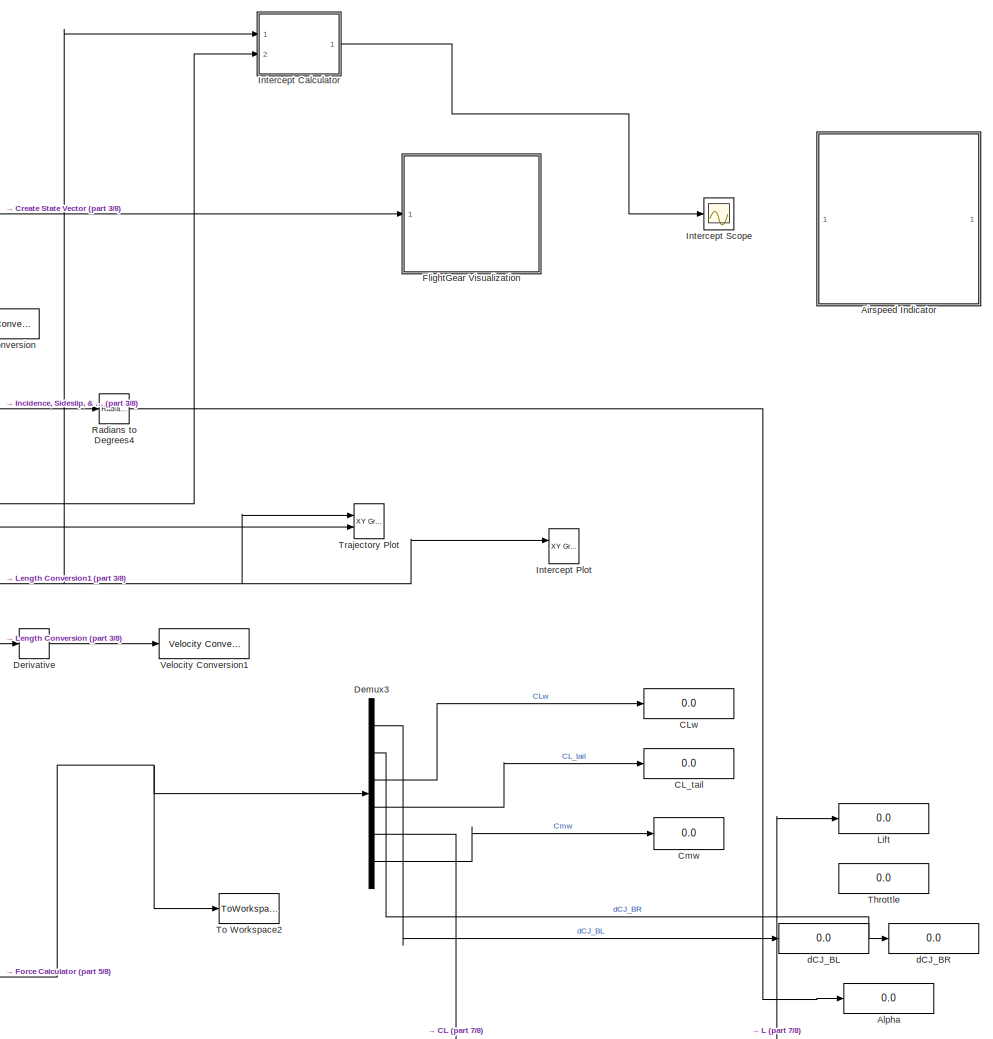
[diagram: root canvas - part 1/8, middle right region]
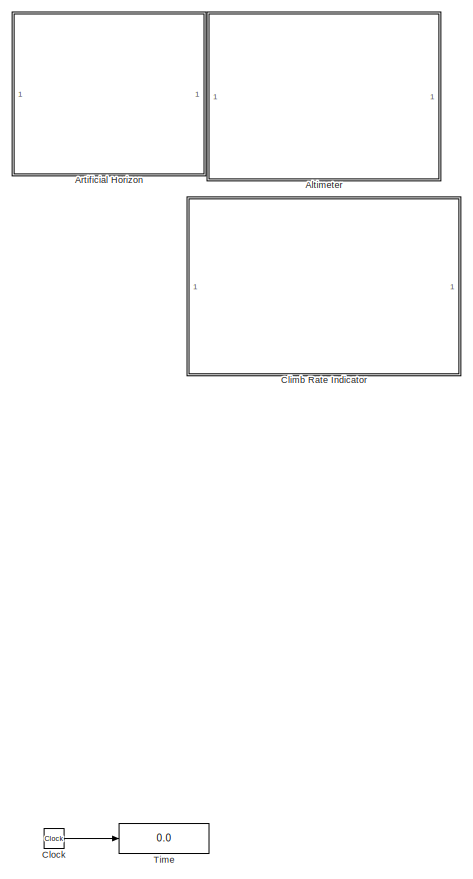
[diagram: root canvas - part 2/8, middle right region]
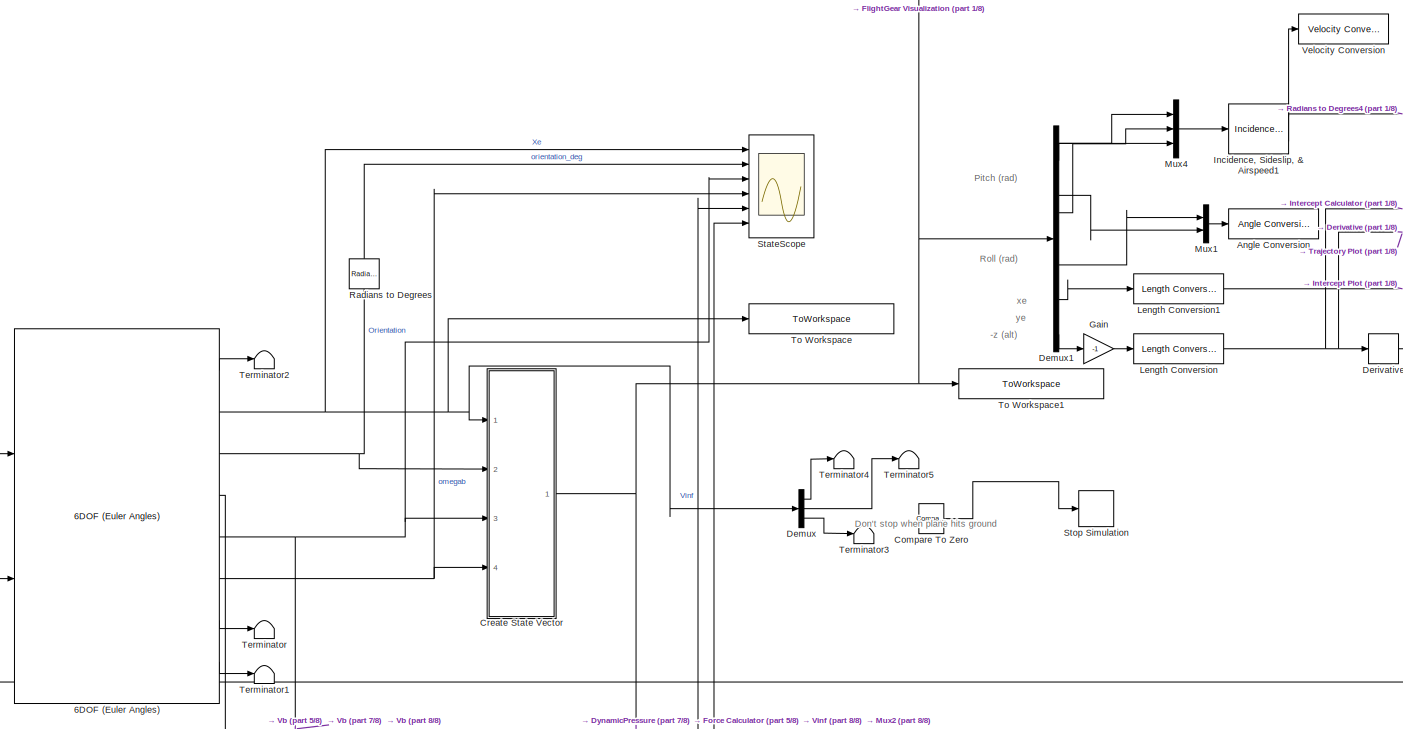
[diagram: root canvas - part 3/8, central region]
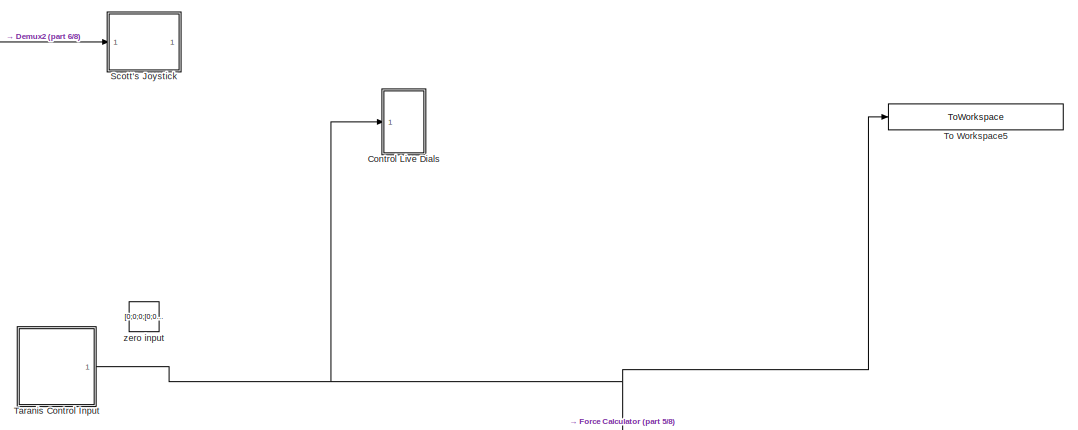
[diagram: root canvas - part 4/8, middle left region]
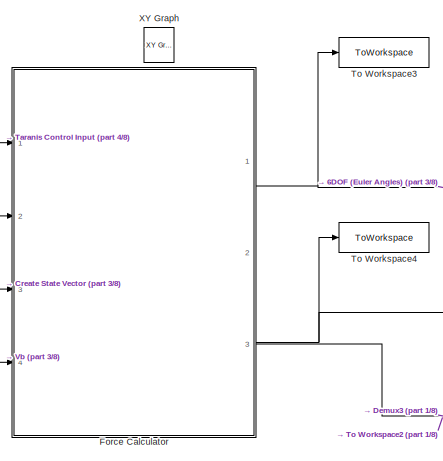
[diagram: root canvas - part 5/8, central region]
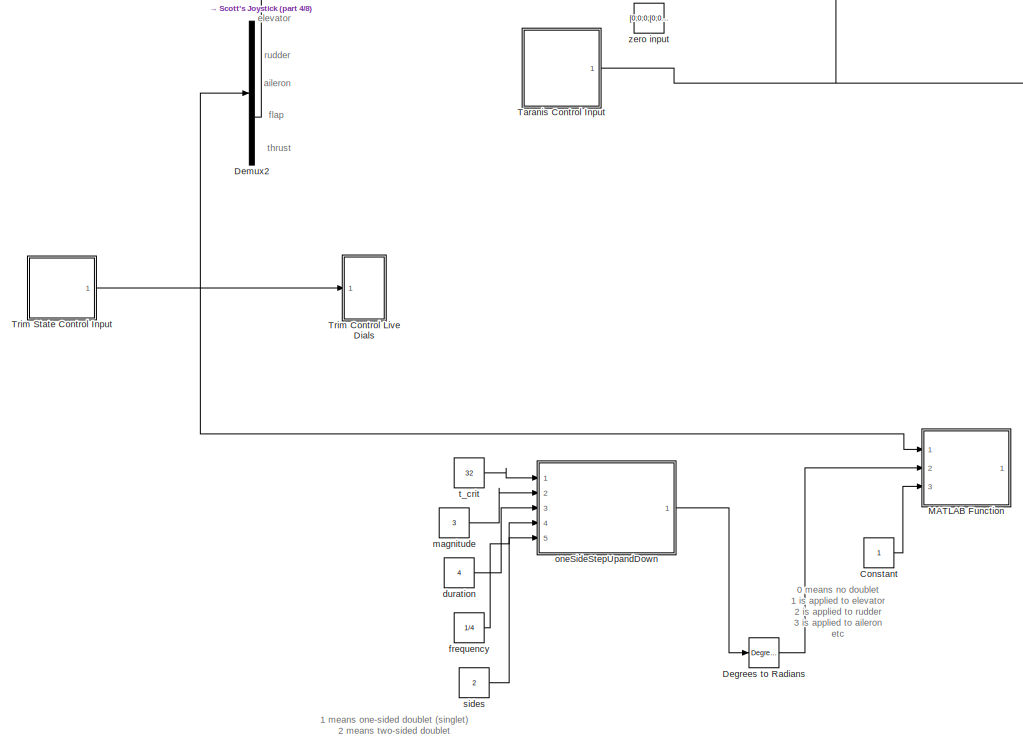
[diagram: root canvas - part 6/8, bottom left region]
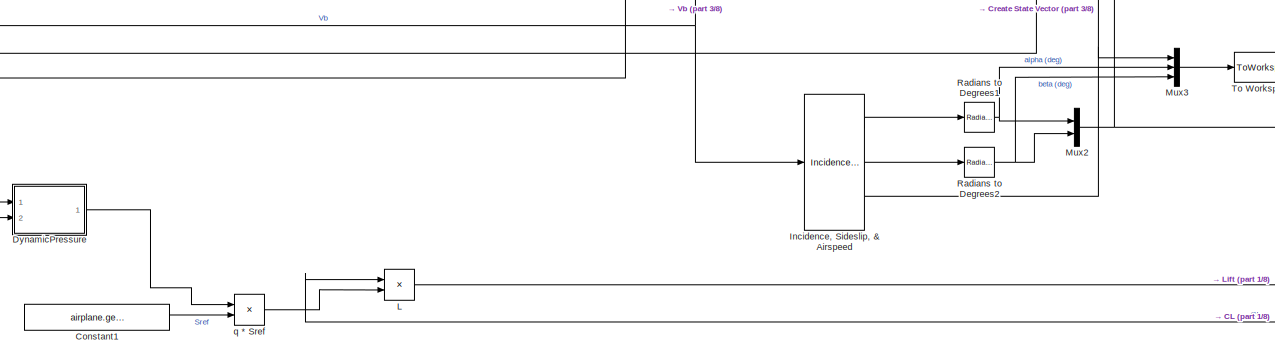
[diagram: root canvas - part 7/8, bottom center region]
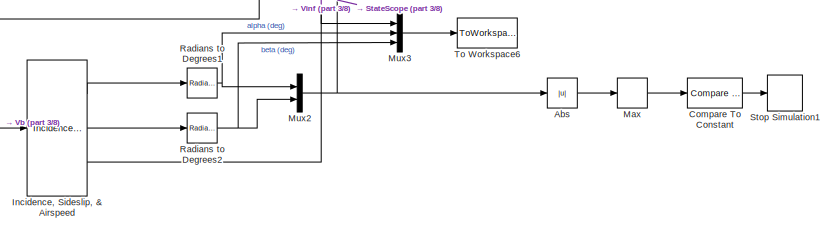
[diagram: root canvas - part 8/8, bottom center region]
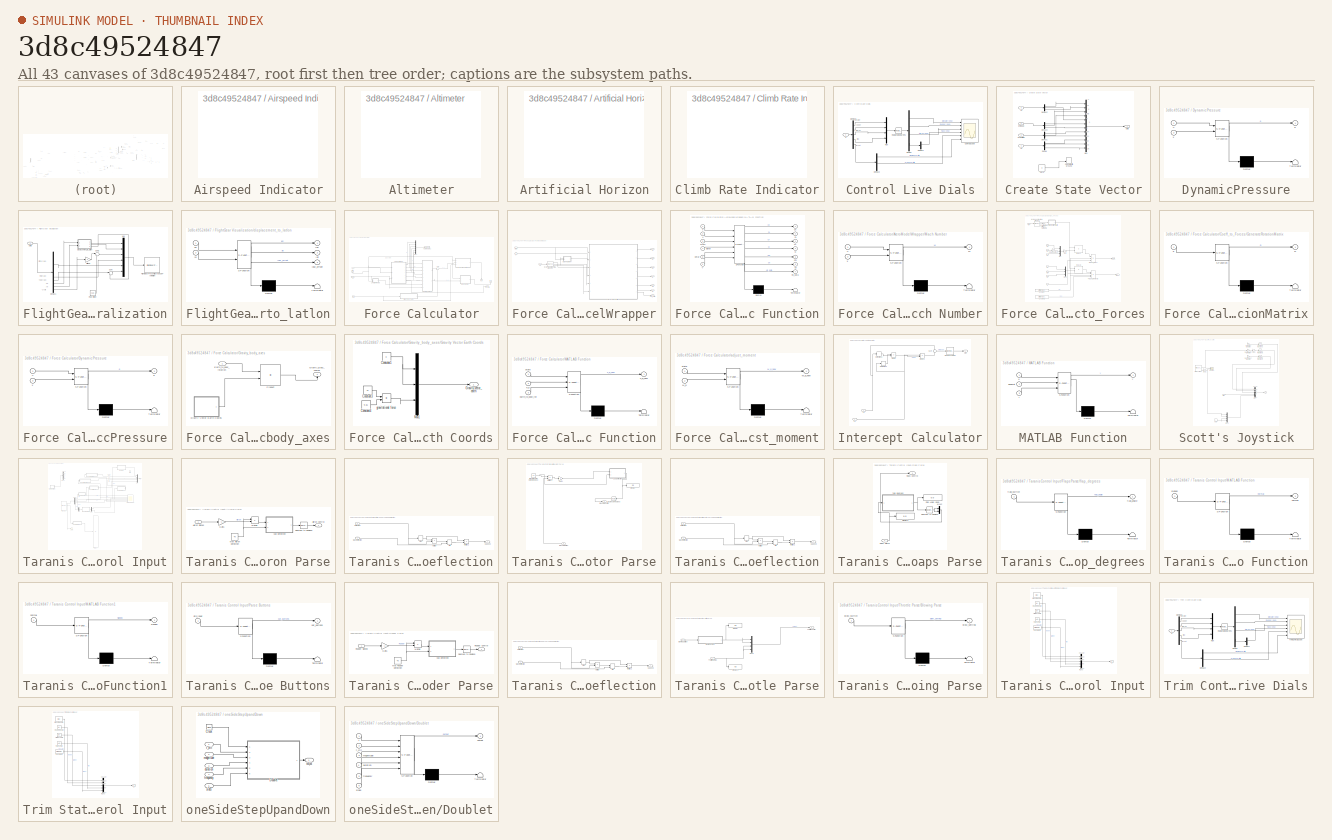
[diagram: thumbnail index - all 43 canvases of the model, root first then tree order]
MODEL slx_3d8c49524847
KIND model
CONFIG AbsTol = auto
CONFIG EnableMultiTasking = off
CONFIG FixedStep = 1/30
CONFIG InitFcn = initializeVariables
CONFIG MaxStep = 2.0
CONFIG MinStep = auto
CONFIG RelTol = 1e-3
CONFIG SampleTimeConstraint = Unconstrained
CONFIG Solver = FixedStepAuto
CONFIG SolverName = FixedStepAuto
CONFIG StartTime = 0.0
CONFIG StopFcn = postProcessResults
CONFIG StopTime = 1000
BLOCK [Reference] 6DOF (Euler Angles)  REF=shared6dof/6DOF (Euler Angles)
  Ports = [2, 8]
  SourceBlock = shared6dof/6DOF (Euler Angles)
  SourceProductBaseCode = AE
  SourceProductName = Aerospace Blockset
  SourceType = 6DOF EoM (Body Axis)
BLOCK [Abs] Abs
  SaturateOnIntegerOverflow = off
BLOCK [SubSystem] Airspeed Indicator
  DialogController = aeroblksHMICreateDDGDialog
  IsWebBlock = on
  Ports = []
  RequestExecContextInheritance = off
BLOCK [Display] Alpha
  Decimation = 1
  Ports = [1]
BLOCK [SubSystem] Altimeter
  DialogController = aeroblksHMICreateDDGDialog
  IsWebBlock = on
  Ports = []
  RequestExecContextInheritance = off
BLOCK [Reference] Angle Conversion  REF=aerolibconvert2/Angle Conversion
  Ports = [1, 1]
  SourceBlock = aerolibconvert2/Angle Conversion
  SourceProductBaseCode = AE
  SourceProductName = Aerospace Blockset
  SourceType = Angle Conversion
BLOCK [SubSystem] Artificial Horizon
  DialogController = aeroblksHMICreateDDGDialog
  IsWebBlock = on
  Ports = []
  RequestExecContextInheritance = off
BLOCK [Display] CL_tail
  Decimation = 1
  Ports = [1]
BLOCK [Display] CLw
  Decimation = 1
  Ports = [1]
BLOCK [SubSystem] Climb Rate Indicator
  DialogController = aeroblksHMICreateDDGDialog
  IsWebBlock = on
  Ports = []
  RequestExecContextInheritance = off
BLOCK [Clock] Clock
BLOCK [Display] Cmw
  Decimation = 1
  Ports = [1]
BLOCK [Reference] Compare To Constant  REF=simulink/Logic and Bit
Operations/Compare
To Constant
  Ports = [1, 1]
  SourceBlock = simulink/Logic and Bit\nOperations/Compare\nTo Constant
  SourceProductBaseCode = SL
  SourceProductName = Simulink
  SourceType = Compare To Constant
BLOCK [Reference] Compare To Zero  REF=simulink/Logic and Bit
Operations/Compare
To Zero
  Commented = on
  Ports = [1, 1]
  SourceBlock = simulink/Logic and Bit\nOperations/Compare\nTo Zero
  SourceProductBaseCode = SL
  SourceProductName = Simulink
  SourceType = Compare To Zero
BLOCK [Constant] Constant
  Commented = on
BLOCK [Constant] Constant1
  Value = airplane.geometry.Wing.S
BLOCK [SubSystem] Control Live Dials
  Ports = [1]
  RequestExecContextInheritance = off
BLOCK [Scope] Control Live Dials/Control Scope
  Floating = off
  NumInputPorts = 6
  Ports = [6]
  ScopeSpecificationString = Simulink.scopes.TimeScopeBlockCfg('CurrentConfiguration', extmgr.ConfigurationSet(extmgr.Configuration('Core','General UI',true),extmgr.Configuration('Core','Source UI',true),extmgr.Configuration('Sources','WiredSimulink',true,'DataLoggingVariableName','ScopeData2'),extmgr.Configuration('Visuals','Time Domain',true,'SerializedDisplays',{struct('MinYLimReal','-20','MaxYLimReal','20','YLabelReal',''...<+4768ch>
BLOCK [Demux] Control Live Dials/Demux
  DisplayOption = bar
  Outputs = [1,1,1,2]
  Ports = [1, 4]
BLOCK [Demux] Control Live Dials/Demux1
  DisplayOption = bar
  Outputs = 2
  Ports = [1, 2]
BLOCK [Demux] Control Live Dials/Demux2
  DisplayOption = bar
  Ports = [1, 4]
BLOCK [Demux] Control Live Dials/Demux4
  DisplayOption = bar
  Outputs = [1 1 1 2 4]
  Ports = [1, 5]
BLOCK [Mux] Control Live Dials/Mux
  DisplayOption = bar
  Ports = [4, 1]
BLOCK [Reference] Control Live Dials/Radians to Degrees  REF=simulink_extras/Transformations/Radians
to Degrees
  Ports = [1, 1]
  SourceBlock = simulink_extras/Transformations/Radians\nto Degrees
  SourceProductBaseCode = SL
  SourceProductName = Simulink
  SourceType = RadiansToDegrees
BLOCK [Inport] Control Live Dials/u
  IconDisplay = Port number
BLOCK [SubSystem] Create State Vector
  Ports = [4, 1]
  RequestExecContextInheritance = off
BLOCK [MinMax] Create State Vector/Cap height to ground
  Commented = on
  InputSameDT = off
  Inputs = 2
  Ports = [2, 1]
  SaturateOnIntegerOverflow = off
BLOCK [Demux] Create State Vector/Demux
  DisplayOption = bar
  Outputs = 3
  Ports = [1, 3]
BLOCK [Demux] Create State Vector/Demux1
  DisplayOption = bar
  Outputs = 3
  Ports = [1, 3]
BLOCK [Demux] Create State Vector/Demux2
  DisplayOption = bar
  Outputs = 3
  Ports = [1, 3]
BLOCK [Demux] Create State Vector/Demux3
  DisplayOption = bar
  Outputs = 3
  Ports = [1, 3]
BLOCK [Mux] Create State Vector/Mux
  DisplayOption = bar
  Inputs = 12
  Ports = [12, 1]
BLOCK [Inport] Create State Vector/Vb
  IconDisplay = Port number
  Port = 3
BLOCK [Inport] Create State Vector/Xe
  IconDisplay = Port number
BLOCK [Constant] Create State Vector/Zero
  Commented = on
  OutDataTypeStr = Inherit: Inherit via back propagation
  Value = 0
BLOCK [Inport] Create State Vector/omega b
  IconDisplay = Port number
  Port = 4
BLOCK [Inport] Create State Vector/orientation
  IconDisplay = Port number
  Port = 2
BLOCK [Outport] Create State Vector/state
  IconDisplay = Port number
BLOCK [Reference] Degrees to Radians  REF=simulink_extras/Transformations/Degrees to
Radians
  Commented = on
  Ports = [1, 1]
  SourceBlock = simulink_extras/Transformations/Degrees to\nRadians
  SourceProductBaseCode = SL
  SourceProductName = Simulink
  SourceType = DegreesToRadians
BLOCK [Demux] Demux
  DisplayOption = bar
  Outputs = 3
  Ports = [1, 3]
BLOCK [Demux] Demux1
  DisplayOption = bar
  Outputs = 12
  Ports = [1, 12]
BLOCK [Demux] Demux2
  Commented = on
  DisplayOption = bar
  Outputs = [1 1 1 2 4]
  Ports = [1, 5]
BLOCK [Demux] Demux3
  DisplayOption = bar
  Outputs = 6
  Ports = [1, 6]
BLOCK [Derivative] Derivative
BLOCK [SubSystem] DynamicPressure
  ErrorFcn = Stateflow.Translate.translate
  PermitHierarchicalResolution = ExplicitOnly
  Ports = [2, 1]
  RequestExecContextInheritance = off
  SFBlockType = MATLAB Function
  TreatAsAtomicUnit = on
BLOCK [Demux] DynamicPressure/ Demux 
  Outputs = 1
  Ports = [1, 1]
BLOCK [S-Function] DynamicPressure/ SFunction 
  EnableBusSupport = on
  FunctionName = sf_sfun
  PortCounts = [2 2]
  Ports = [2, 2]
  SFcnIsStateOwnerBlock = off
  SFunctionDeploymentMode = off
  Tag = Stateflow S-Function Six_DOF 8
BLOCK [Terminator] DynamicPressure/ Terminator 
BLOCK [Inport] DynamicPressure/V
  IconDisplay = Port number
BLOCK [Outport] DynamicPressure/q
  IconDisplay = Port number
BLOCK [Inport] DynamicPressure/x
  IconDisplay = Port number
  Port = 2
BLOCK [SubSystem] FlightGear Visualization
  Ports = [1]
  RequestExecContextInheritance = off
BLOCK [Demux] FlightGear Visualization/Demux1
  DisplayOption = bar
  Outputs = 12
  Ports = [1, 12]
BLOCK [Reference] FlightGear Visualization/FlightGear Preconfigured 6DoF Animation  REF=aerolibfltsims/FlightGear
Preconfigured
6DoF Animation
  AttributesFormatString = Version Selected: %<xFlightGearVersion>
  Ports = [1]
  SourceBlock = aerolibfltsims/FlightGear\nPreconfigured\n6DoF Animation
  SourceProductBaseCode = AE
  SourceProductName = Aerospace Blockset
  SourceType = FlightGearQuick6DoFAnimation
BLOCK [Constant] FlightGear Visualization/Floor Offset
  OutDataTypeStr = Inherit: Inherit via back propagation
  Value = 3.25
BLOCK [Mux] FlightGear Visualization/Mux
  DisplayOption = bar
  Inputs = 6
  Ports = [6, 1]
BLOCK [Sum] FlightGear Visualization/Sum
  IconShape = round
  InputSameDT = off
  Inputs = |++
  OutDataTypeStr = Inherit: Inherit via internal rule
  Ports = [2, 1]
  SaturateOnIntegerOverflow = off
BLOCK [Sum] FlightGear Visualization/Sum1
  IconShape = round
  InputSameDT = off
  Inputs = |++
  OutDataTypeStr = Inherit: Inherit via internal rule
  Ports = [2, 1]
  SaturateOnIntegerOverflow = off
BLOCK [Gain] FlightGear Visualization/altitude
  Gain = -1
  OutDataTypeStr = Inherit: Inherit via internal rule
  ParamDataTypeStr = Inherit: Inherit via internal rule
  SaturateOnIntegerOverflow = off
BLOCK [SubSystem] FlightGear Visualization/displacement_to_latlon
  ErrorFcn = Stateflow.Translate.translate
  PermitHierarchicalResolution = ExplicitOnly
  Ports = [2, 3]
  RequestExecContextInheritance = off
  SFBlockType = MATLAB Function
  TreatAsAtomicUnit = on
BLOCK [Demux] FlightGear Visualization/displacement_to_latlon/ Demux 
  Outputs = 1
  Ports = [1, 1]
BLOCK [S-Function] FlightGear Visualization/displacement_to_latlon/ SFunction 
  EnableBusSupport = on
  FunctionName = sf_sfun
  PortCounts = [2 4]
  Ports = [2, 4]
  SFcnIsStateOwnerBlock = off
  SFunctionDeploymentMode = off
  Tag = Stateflow S-Function Six_DOF 7
BLOCK [Terminator] FlightGear Visualization/displacement_to_latlon/ Terminator 
BLOCK [Outport] FlightGear Visualization/displacement_to_latlon/lat
  IconDisplay = Port number
  Port = 2
BLOCK [Outport] FlightGear Visualization/displacement_to_latlon/lon
  IconDisplay = Port number
BLOCK [Inport] FlightGear Visualization/displacement_to_latlon/xe
  IconDisplay = Port number
BLOCK [Outport] FlightGear Visualization/displacement_to_latlon/yaw_offset
  IconDisplay = Port number
  Port = 3
BLOCK [Inport] FlightGear Visualization/displacement_to_latlon/ye
  IconDisplay = Port number
  Port = 2
BLOCK [Inport] FlightGear Visualization/state
  IconDisplay = Port number
BLOCK [SubSystem] Force Calculator
  Ports = [4, 3]
  RequestExecContextInheritance = off
BLOCK [SubSystem] Force Calculator/AeroModelWrapper
  Ports = [3, 7]
  RequestExecContextInheritance = off
BLOCK [Outport] Force Calculator/AeroModelWrapper/CL
  IconDisplay = Port number
  OutDataTypeStr = double
  Port = 2
BLOCK [Outport] Force Calculator/AeroModelWrapper/CX
  IconDisplay = Port number
  OutDataTypeStr = double
BLOCK [Outport] Force Calculator/AeroModelWrapper/CY
  IconDisplay = Port number
  OutDataTypeStr = double
  Port = 3
BLOCK [Outport] Force Calculator/AeroModelWrapper/Cl
  IconDisplay = Port number
  OutDataTypeStr = double
  Port = 4
BLOCK [Outport] Force Calculator/AeroModelWrapper/Cm
  IconDisplay = Port number
  OutDataTypeStr = double
  Port = 5
BLOCK [Outport] Force Calculator/AeroModelWrapper/Cn
  IconDisplay = Port number
  OutDataTypeStr = double
  Port = 6
BLOCK [Reference] Force Calculator/AeroModelWrapper/Incidence, Sideslip, & Airspeed  REF=aerolibasang/Incidence, Sideslip,
& Airspeed
  Ports = [1, 3]
  SourceBlock = aerolibasang/Incidence, Sideslip,\n& Airspeed
  SourceProductBaseCode = AE
  SourceProductName = Aerospace Blockset
  SourceType = Incidence,Sideslip,&Airspeed
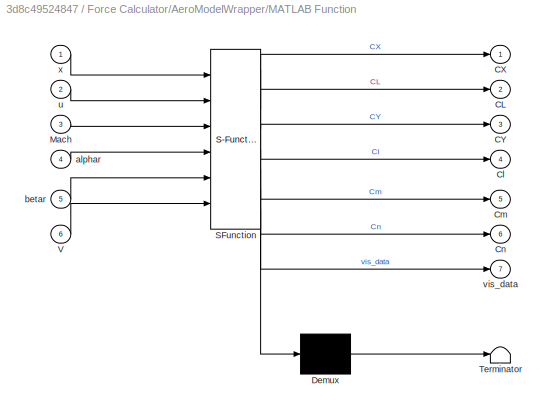
BLOCK [SubSystem] Force Calculator/AeroModelWrapper/MATLAB Function
  ErrorFcn = Stateflow.Translate.translate
  PermitHierarchicalResolution = ExplicitOnly
  Ports = [6, 7]
  RequestExecContextInheritance = off
  SFBlockType = MATLAB Function
  TreatAsAtomicUnit = on
BLOCK [Demux] Force Calculator/AeroModelWrapper/MATLAB Function/ Demux 
  Outputs = 1
  Ports = [1, 1]
BLOCK [S-Function] Force Calculator/AeroModelWrapper/MATLAB Function/ SFunction 
  EnableBusSupport = on
  FunctionName = sf_sfun
  PortCounts = [6 8]
  Ports = [6, 8]
  SFcnIsStateOwnerBlock = off
  SFunctionDeploymentMode = off
  Tag = Stateflow S-Function Six_DOF 2
BLOCK [Terminator] Force Calculator/AeroModelWrapper/MATLAB Function/ Terminator 
BLOCK [Outport] Force Calculator/AeroModelWrapper/MATLAB Function/CL
  IconDisplay = Port number
  Port = 2
BLOCK [Outport] Force Calculator/AeroModelWrapper/MATLAB Function/CX
  IconDisplay = Port number
BLOCK [Outport] Force Calculator/AeroModelWrapper/MATLAB Function/CY
  IconDisplay = Port number
  Port = 3
BLOCK [Outport] Force Calculator/AeroModelWrapper/MATLAB Function/Cl
  IconDisplay = Port number
  Port = 4
BLOCK [Outport] Force Calculator/AeroModelWrapper/MATLAB Function/Cm
  IconDisplay = Port number
  Port = 5
BLOCK [Outport] Force Calculator/AeroModelWrapper/MATLAB Function/Cn
  IconDisplay = Port number
  Port = 6
BLOCK [Inport] Force Calculator/AeroModelWrapper/MATLAB Function/Mach
  IconDisplay = Port number
  Port = 3
BLOCK [Inport] Force Calculator/AeroModelWrapper/MATLAB Function/V
  IconDisplay = Port number
  Port = 6
BLOCK [Inport] Force Calculator/AeroModelWrapper/MATLAB Function/alphar
  IconDisplay = Port number
  Port = 4
BLOCK [Inport] Force Calculator/AeroModelWrapper/MATLAB Function/betar
  IconDisplay = Port number
  Port = 5
BLOCK [Inport] Force Calculator/AeroModelWrapper/MATLAB Function/u
  IconDisplay = Port number
  Port = 2
BLOCK [Outport] Force Calculator/AeroModelWrapper/MATLAB Function/vis_data
  IconDisplay = Port number
  Port = 7
BLOCK [Inport] Force Calculator/AeroModelWrapper/MATLAB Function/x
  IconDisplay = Port number
BLOCK [SubSystem] Force Calculator/AeroModelWrapper/Mach Number
  ErrorFcn = Stateflow.Translate.translate
  PermitHierarchicalResolution = ExplicitOnly
  Ports = [2, 1]
  RequestExecContextInheritance = off
  SFBlockType = MATLAB Function
  TreatAsAtomicUnit = on
BLOCK [Demux] Force Calculator/AeroModelWrapper/Mach Number/ Demux 
  Outputs = 1
  Ports = [1, 1]
BLOCK [S-Function] Force Calculator/AeroModelWrapper/Mach Number/ SFunction 
  EnableBusSupport = on
  FunctionName = sf_sfun
  PortCounts = [2 2]
  Ports = [2, 2]
  SFcnIsStateOwnerBlock = off
  SFunctionDeploymentMode = off
  Tag = Stateflow S-Function Six_DOF 3
BLOCK [Terminator] Force Calculator/AeroModelWrapper/Mach Number/ Terminator 
BLOCK [Outport] Force Calculator/AeroModelWrapper/Mach Number/M
  IconDisplay = Port number
BLOCK [Inport] Force Calculator/AeroModelWrapper/Mach Number/V
  IconDisplay = Port number
BLOCK [Inport] Force Calculator/AeroModelWrapper/Mach Number/x
  IconDisplay = Port number
  Port = 2
BLOCK [Inport] Force Calculator/AeroModelWrapper/Vb
  IconDisplay = Port number
  Port = 3
BLOCK [Inport] Force Calculator/AeroModelWrapper/state
  IconDisplay = Port number
BLOCK [Inport] Force Calculator/AeroModelWrapper/u
  IconDisplay = Port number
  Port = 2
BLOCK [Outport] Force Calculator/AeroModelWrapper/vis_data
  IconDisplay = Port number
  Port = 7
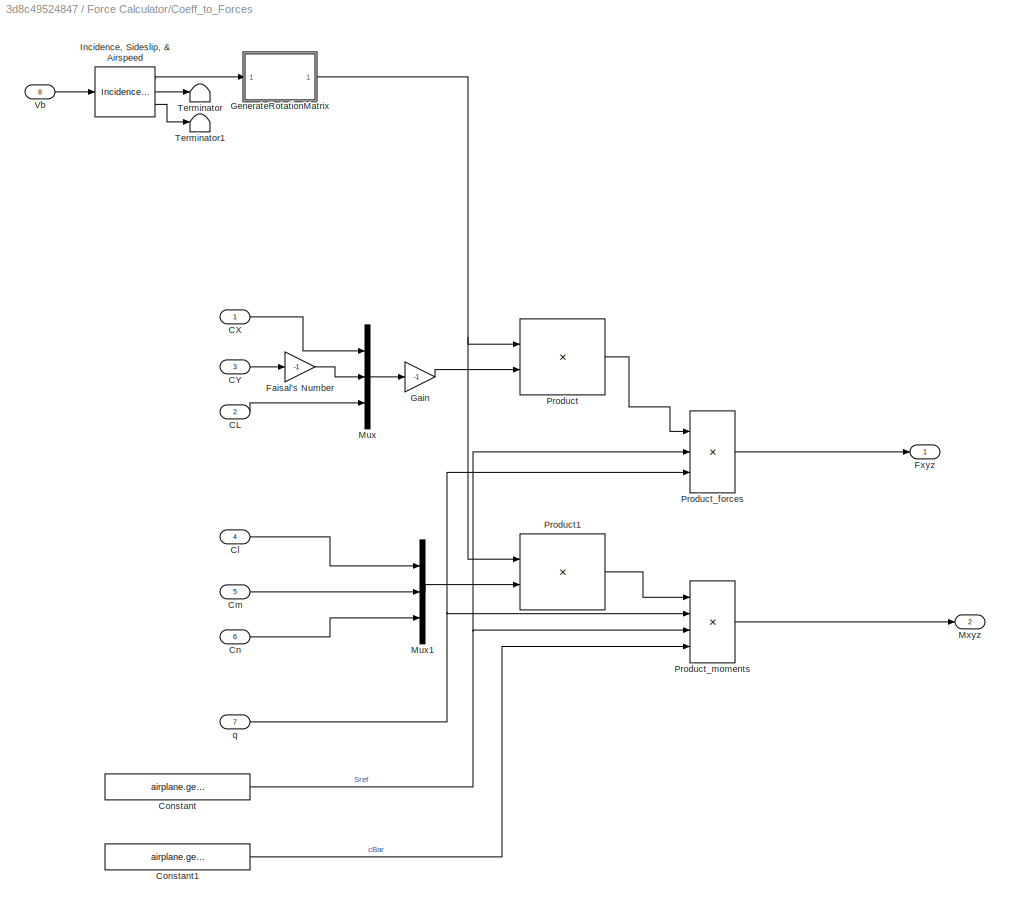
BLOCK [SubSystem] Force Calculator/Coeff_to_Forces
  Ports = [8, 2]
  RequestExecContextInheritance = off
  TreatAsAtomicUnit = on
BLOCK [Inport] Force Calculator/Coeff_to_Forces/CL
  IconDisplay = Port number
  OutDataTypeStr = double
  Port = 2
  PortDimensions = 1
  VarSizeSig = No
BLOCK [Inport] Force Calculator/Coeff_to_Forces/CX
  IconDisplay = Port number
  OutDataTypeStr = double
  PortDimensions = 1
  VarSizeSig = No
BLOCK [Inport] Force Calculator/Coeff_to_Forces/CY
  IconDisplay = Port number
  OutDataTypeStr = double
  Port = 3
  PortDimensions = 1
  VarSizeSig = No
BLOCK [Inport] Force Calculator/Coeff_to_Forces/Cl
  IconDisplay = Port number
  OutDataTypeStr = double
  Port = 4
  PortDimensions = 1
  VarSizeSig = No
BLOCK [Inport] Force Calculator/Coeff_to_Forces/Cm
  IconDisplay = Port number
  OutDataTypeStr = double
  Port = 5
  PortDimensions = 1
  VarSizeSig = No
BLOCK [Inport] Force Calculator/Coeff_to_Forces/Cn
  IconDisplay = Port number
  OutDataTypeStr = double
  Port = 6
  PortDimensions = 1
  VarSizeSig = No
BLOCK [Constant] Force Calculator/Coeff_to_Forces/Constant
  Value = airplane.geometry.Wing.S
BLOCK [Constant] Force Calculator/Coeff_to_Forces/Constant1
  Value = airplane.geometry.Wing.cbar
BLOCK [Gain] Force Calculator/Coeff_to_Forces/Faisal's Number
  Gain = -1
  OutDataTypeStr = Inherit: Inherit via internal rule
  ParamDataTypeStr = Inherit: Inherit via internal rule
  SaturateOnIntegerOverflow = off
BLOCK [Outport] Force Calculator/Coeff_to_Forces/Fxyz
  IconDisplay = Port number
BLOCK [Gain] Force Calculator/Coeff_to_Forces/Gain
  Gain = -1
  OutDataTypeStr = Inherit: Inherit via internal rule
  ParamDataTypeStr = Inherit: Inherit via internal rule
  SaturateOnIntegerOverflow = off
BLOCK [SubSystem] Force Calculator/Coeff_to_Forces/GenerateRotationMatrix
  ErrorFcn = Stateflow.Translate.translate
  PermitHierarchicalResolution = ExplicitOnly
  Ports = [1, 1]
  RequestExecContextInheritance = off
  SFBlockType = MATLAB Function
  TreatAsAtomicUnit = on
BLOCK [Demux] Force Calculator/Coeff_to_Forces/GenerateRotationMatrix/ Demux 
  Outputs = 1
  Ports = [1, 1]
BLOCK [S-Function] Force Calculator/Coeff_to_Forces/GenerateRotationMatrix/ SFunction 
  EnableBusSupport = on
  FunctionName = sf_sfun
  PortCounts = [1 2]
  Ports = [1, 2]
  SFcnIsStateOwnerBlock = off
  SFunctionDeploymentMode = off
  Tag = Stateflow S-Function Six_DOF 4
BLOCK [Terminator] Force Calculator/Coeff_to_Forces/GenerateRotationMatrix/ Terminator 
BLOCK [Outport] Force Calculator/Coeff_to_Forces/GenerateRotationMatrix/R
  IconDisplay = Port number
BLOCK [Inport] Force Calculator/Coeff_to_Forces/GenerateRotationMatrix/a
  IconDisplay = Port number
BLOCK [Reference] Force Calculator/Coeff_to_Forces/Incidence, Sideslip, & Airspeed  REF=aerolibasang/Incidence, Sideslip,
& Airspeed
  Ports = [1, 3]
  SourceBlock = aerolibasang/Incidence, Sideslip,\n& Airspeed
  SourceProductBaseCode = AE
  SourceProductName = Aerospace Blockset
  SourceType = Incidence,Sideslip,&Airspeed
BLOCK [Mux] Force Calculator/Coeff_to_Forces/Mux
  DisplayOption = bar
  Inputs = 3
  Ports = [3, 1]
BLOCK [Mux] Force Calculator/Coeff_to_Forces/Mux1
  DisplayOption = bar
  Inputs = 3
  Ports = [3, 1]
BLOCK [Outport] Force Calculator/Coeff_to_Forces/Mxyz
  IconDisplay = Port number
  Port = 2
BLOCK [Product] Force Calculator/Coeff_to_Forces/Product
  InputSameDT = off
  Multiplication = Matrix(*)
  OutDataTypeStr = Inherit: Inherit via internal rule
  Ports = [2, 1]
  RndMeth = Floor
  SaturateOnIntegerOverflow = off
BLOCK [Product] Force Calculator/Coeff_to_Forces/Product1
  InputSameDT = off
  Multiplication = Matrix(*)
  OutDataTypeStr = Inherit: Inherit via internal rule
  Ports = [2, 1]
  RndMeth = Floor
  SaturateOnIntegerOverflow = off
BLOCK [Product] Force Calculator/Coeff_to_Forces/Product_forces
  InputSameDT = off
  Inputs = 3
  OutDataTypeStr = Inherit: Inherit via internal rule
  Ports = [3, 1]
  RndMeth = Floor
  SaturateOnIntegerOverflow = off
BLOCK [Product] Force Calculator/Coeff_to_Forces/Product_moments
  InputSameDT = off
  Inputs = 4
  OutDataTypeStr = Inherit: Inherit via internal rule
  Ports = [4, 1]
  RndMeth = Floor
  SaturateOnIntegerOverflow = off
BLOCK [Terminator] Force Calculator/Coeff_to_Forces/Terminator
BLOCK [Terminator] Force Calculator/Coeff_to_Forces/Terminator1
BLOCK [Inport] Force Calculator/Coeff_to_Forces/Vb
  IconDisplay = Port number
  OutDataTypeStr = double
  Port = 8
  PortDimensions = 3
  VarSizeSig = No
BLOCK [Inport] Force Calculator/Coeff_to_Forces/q
  IconDisplay = Port number
  OutDataTypeStr = double
  Port = 7
  PortDimensions = 1
  VarSizeSig = No
BLOCK [Inport] Force Calculator/DCM
  IconDisplay = Port number
  Port = 2
BLOCK [SubSystem] Force Calculator/DynamicPressure
  ErrorFcn = Stateflow.Translate.translate
  PermitHierarchicalResolution = ExplicitOnly
  Ports = [2, 1]
  RequestExecContextInheritance = off
  SFBlockType = MATLAB Function
  TreatAsAtomicUnit = on
BLOCK [Demux] Force Calculator/DynamicPressure/ Demux 
  Outputs = 1
  Ports = [1, 1]
BLOCK [S-Function] Force Calculator/DynamicPressure/ SFunction 
  EnableBusSupport = on
  FunctionName = sf_sfun
  PortCounts = [2 2]
  Ports = [2, 2]
  SFcnIsStateOwnerBlock = off
  SFunctionDeploymentMode = off
  Tag = Stateflow S-Function Six_DOF 1
BLOCK [Terminator] Force Calculator/DynamicPressure/ Terminator 
BLOCK [Inport] Force Calculator/DynamicPressure/V
  IconDisplay = Port number
BLOCK [Outport] Force Calculator/DynamicPressure/q
  IconDisplay = Port number
BLOCK [Inport] Force Calculator/DynamicPressure/x
  IconDisplay = Port number
  Port = 2
BLOCK [Outport] Force Calculator/F_b
  IconDisplay = Port number
BLOCK [SubSystem] Force Calculator/Gravity_body_axes
  Ports = [1, 1]
  RequestExecContextInheritance = off
BLOCK [Inport] Force Calculator/Gravity_body_axes/Earth_to_body_rotation
  IconDisplay = Port number
BLOCK [SubSystem] Force Calculator/Gravity_body_axes/Gravity Vector Earth Coords
  Ports = [0, 1]
  RequestExecContextInheritance = off
BLOCK [Constant] Force Calculator/Gravity_body_axes/Gravity Vector Earth Coords/Constant3
  Value = m
BLOCK [Constant] Force Calculator/Gravity_body_axes/Gravity Vector Earth Coords/Constant4
  Value = 9.81
BLOCK [Constant] Force Calculator/Gravity_body_axes/Gravity Vector Earth Coords/Constant5
  Value = 0
BLOCK [Outport] Force Calculator/Gravity_body_axes/Gravity Vector Earth Coords/Gravity_vector_earth 
  IconDisplay = Port number
BLOCK [Mux] Force Calculator/Gravity_body_axes/Gravity Vector Earth Coords/Mux1
  DisplayOption = bar
  Inputs = 3
  Ports = [3, 1]
BLOCK [Product] Force Calculator/Gravity_body_axes/Gravity Vector Earth Coords/gravitational force
  InputSameDT = off
  OutDataTypeStr = Inherit: Inherit via internal rule
  Ports = [2, 1]
  RndMeth = Floor
  SaturateOnIntegerOverflow = off
BLOCK [Outport] Force Calculator/Gravity_body_axes/Gravity_Body_coords
  IconDisplay = Port number
BLOCK [Product] Force Calculator/Gravity_body_axes/Product
  InputSameDT = off
  Multiplication = Matrix(*)
  OutDataTypeStr = Inherit: Inherit via internal rule
  Ports = [2, 1]
  RndMeth = Floor
  SaturateOnIntegerOverflow = off
BLOCK [SubSystem] Force Calculator/MATLAB Function
  ErrorFcn = Stateflow.Translate.translate
  PermitHierarchicalResolution = ExplicitOnly
  Ports = [3, 1]
  RequestExecContextInheritance = off
  SFBlockType = MATLAB Function
  TreatAsAtomicUnit = on
BLOCK [Demux] Force Calculator/MATLAB Function/ Demux 
  Outputs = 1
  Ports = [1, 1]
BLOCK [S-Function] Force Calculator/MATLAB Function/ SFunction 
  EnableBusSupport = on
  FunctionName = sf_sfun
  PortCounts = [3 2]
  Ports = [3, 2]
  SFcnIsStateOwnerBlock = off
  SFunctionDeploymentMode = off
  Tag = Stateflow S-Function Six_DOF 11
BLOCK [Terminator] Force Calculator/MATLAB Function/ Terminator 
BLOCK [Inport] Force Calculator/MATLAB Function/F_b
  IconDisplay = Port number
  Port = 2
BLOCK [Outport] Force Calculator/MATLAB Function/F_b_new
  IconDisplay = Port number
BLOCK [Inport] Force Calculator/MATLAB Function/earth_to_body_rot
  IconDisplay = Port number
  Port = 3
BLOCK [Inport] Force Calculator/MATLAB Function/state
  IconDisplay = Port number
BLOCK [Outport] Force Calculator/M_b
  IconDisplay = Port number
  Port = 2
BLOCK [Mux] Force Calculator/Mux1
  DisplayOption = bar
  Inputs = 6
  Ports = [6, 1]
BLOCK [Sum] Force Calculator/Sum
  IconShape = round
  InputSameDT = off
  Inputs = +|+
  OutDataTypeStr = Inherit: Inherit via internal rule
  Ports = [2, 1]
  SaturateOnIntegerOverflow = off
BLOCK [ToWorkspace] Force Calculator/To Workspace2
  FixptAsFi = on
  MaxDataPoints = inf
  Ports = [1]
  SampleTime = -1
  Save2DSignal = 3-D array (concatenate along third dimension)
  SaveFormat = Timeseries
  VariableName = results_coeffs
BLOCK [Inport] Force Calculator/Vb
  IconDisplay = Port number
  Port = 4
BLOCK [SubSystem] Force Calculator/adjust_moment
  ErrorFcn = Stateflow.Translate.translate
  PermitHierarchicalResolution = ExplicitOnly
  Ports = [2, 1]
  RequestExecContextInheritance = off
  SFBlockType = MATLAB Function
  TreatAsAtomicUnit = on
BLOCK [Demux] Force Calculator/adjust_moment/ Demux 
  Outputs = 1
  Ports = [1, 1]
BLOCK [S-Function] Force Calculator/adjust_moment/ SFunction 
  EnableBusSupport = on
  FunctionName = sf_sfun
  PortCounts = [2 2]
  Ports = [2, 2]
  SFcnIsStateOwnerBlock = off
  SFunctionDeploymentMode = off
  Tag = Stateflow S-Function Six_DOF 15
BLOCK [Terminator] Force Calculator/adjust_moment/ Terminator 
BLOCK [Inport] Force Calculator/adjust_moment/M_b
  IconDisplay = Port number
  Port = 2
BLOCK [Outport] Force Calculator/adjust_moment/M_b_new
  IconDisplay = Port number
BLOCK [Inport] Force Calculator/adjust_moment/state
  IconDisplay = Port number
BLOCK [Inport] Force Calculator/state
  IconDisplay = Port number
  Port = 3
BLOCK [Inport] Force Calculator/u
  IconDisplay = Port number
BLOCK [Outport] Force Calculator/vis_data
  IconDisplay = Port number
  Port = 3
BLOCK [Gain] Gain
  Gain = -1
  OutDataTypeStr = Inherit: Inherit via internal rule
  ParamDataTypeStr = Inherit: Inherit via internal rule
  SaturateOnIntegerOverflow = off
BLOCK [Reference] Incidence, Sideslip, & Airspeed  REF=aerolibasang/Incidence, Sideslip,
& Airspeed
  Ports = [1, 3]
  SourceBlock = aerolibasang/Incidence, Sideslip,\n& Airspeed
  SourceProductBaseCode = AE
  SourceProductName = Aerospace Blockset
  SourceType = Incidence,Sideslip,&Airspeed
BLOCK [Reference] Incidence, Sideslip, & Airspeed1  REF=aerolibasang/Incidence, Sideslip,
& Airspeed
  Ports = [1, 3]
  SourceBlock = aerolibasang/Incidence, Sideslip,\n& Airspeed
  SourceProductBaseCode = AE
  SourceProductName = Aerospace Blockset
  SourceType = Incidence,Sideslip,&Airspeed
BLOCK [SubSystem] Intercept Calculator
  Ports = [2, 1]
  RequestExecContextInheritance = off
BLOCK [Derivative] Intercept Calculator/Derivative1
BLOCK [Derivative] Intercept Calculator/Derivative2
BLOCK [Product] Intercept Calculator/Divide
  InputSameDT = off
  Inputs = */
  OutDataTypeStr = Inherit: Inherit via internal rule
  Ports = [2, 1]
  RndMeth = Floor
  SaturateOnIntegerOverflow = off
BLOCK [Product] Intercept Calculator/Divide1
  InputSameDT = off
  Inputs = */
  OutDataTypeStr = Inherit: Inherit via internal rule
  Ports = [2, 1]
  RndMeth = Floor
  SaturateOnIntegerOverflow = off
BLOCK [Reference] Intercept Calculator/Moving Average  REF=dspstat3/Moving
Average
  Ports = [1, 1]
  SourceBlock = dspstat3/Moving\nAverage
  SourceProductBaseCode = DS
  SourceProductName = DSP System Toolbox
  SourceType = dsp.simulink.MovingAverage
BLOCK [Sum] Intercept Calculator/Sum
  IconShape = round
  InputSameDT = off
  Inputs = +-
  OutDataTypeStr = Inherit: Inherit via internal rule
  Ports = [2, 1]
  SaturateOnIntegerOverflow = off
BLOCK [Outport] Intercept Calculator/x-int
  IconDisplay = Port number
BLOCK [Inport] Intercept Calculator/xe
  IconDisplay = Port number
BLOCK [Inport] Intercept Calculator/ze
  IconDisplay = Port number
  Port = 2
BLOCK [Reference] Intercept Plot  REF=simulink/Sinks/XY Graph
  Commented = on
  Ports = [2]
  SourceBlock = simulink/Sinks/XY Graph
  SourceProductBaseCode = SL
  SourceProductName = Simulink
  SourceType = XY scope.
BLOCK [Scope] Intercept Scope
  Floating = off
  NumInputPorts = 1
  Ports = [1]
  ScopeSpecificationString = Simulink.scopes.TimeScopeBlockCfg('CurrentConfiguration', extmgr.ConfigurationSet(extmgr.Configuration('Core','General UI',true),extmgr.Configuration('Core','Source UI',true),extmgr.Configuration('Sources','WiredSimulink',true,'DataLoggingVariableName','ScopeData1'),extmgr.Configuration('Visuals','Time Domain',true,'SerializedDisplays',{struct('MinYLimReal','-733657.76958','MaxYLimReal','492782.17...<+1517ch>
BLOCK [Product] L
  InputSameDT = off
  OutDataTypeStr = Inherit: Inherit via internal rule
  Ports = [2, 1]
  RndMeth = Floor
  SaturateOnIntegerOverflow = off
BLOCK [Reference] Length Conversion  REF=aerolibconvert2/Length Conversion
  Ports = [1, 1]
  SourceBlock = aerolibconvert2/Length Conversion
  SourceProductBaseCode = AE
  SourceProductName = Aerospace Blockset
  SourceType = Length Conversion
BLOCK [Reference] Length Conversion1  REF=aerolibconvert2/Length Conversion
  Ports = [1, 1]
  SourceBlock = aerolibconvert2/Length Conversion
  SourceProductBaseCode = AE
  SourceProductName = Aerospace Blockset
  SourceType = Length Conversion
BLOCK [Display] Lift
  Decimation = 1
  Ports = [1]
BLOCK [SubSystem] MATLAB Function
  Commented = on
  ErrorFcn = Stateflow.Translate.translate
  PermitHierarchicalResolution = ExplicitOnly
  Ports = [3, 1]
  RequestExecContextInheritance = off
  SFBlockType = MATLAB Function
  TreatAsAtomicUnit = on
BLOCK [Demux] MATLAB Function/ Demux 
  Outputs = 1
  Ports = [1, 1]
BLOCK [S-Function] MATLAB Function/ SFunction 
  EnableBusSupport = on
  FunctionName = sf_sfun
  PortCounts = [3 2]
  Ports = [3, 2]
  SFcnIsStateOwnerBlock = off
  SFunctionDeploymentMode = off
  Tag = Stateflow S-Function Six_DOF 6
BLOCK [Terminator] MATLAB Function/ Terminator 
BLOCK [Inport] MATLAB Function/doublet
  IconDisplay = Port number
  Port = 2
BLOCK [Inport] MATLAB Function/i
  IconDisplay = Port number
  Port = 3
BLOCK [Inport] MATLAB Function/u
  IconDisplay = Port number
BLOCK [Outport] MATLAB Function/y
  IconDisplay = Port number
BLOCK [MinMax] Max
  Function = max
  InputSameDT = off
  Ports = [1, 1]
  SaturateOnIntegerOverflow = off
BLOCK [Mux] Mux1
  DisplayOption = bar
  Inputs = 2
  Ports = [2, 1]
BLOCK [Mux] Mux2
  DisplayOption = bar
  Inputs = 2
  Ports = [2, 1]
BLOCK [Mux] Mux3
  DisplayOption = bar
  Inputs = 3
  Ports = [3, 1]
BLOCK [Mux] Mux4
  DisplayOption = bar
  Inputs = 3
  Ports = [3, 1]
BLOCK [Reference] Radians to Degrees  REF=simulink_extras/Transformations/Radians
to Degrees
  Ports = [1, 1]
  SourceBlock = simulink_extras/Transformations/Radians\nto Degrees
  SourceProductBaseCode = SL
  SourceProductName = Simulink
  SourceType = RadiansToDegrees
BLOCK [Reference] Radians to Degrees1  REF=simulink_extras/Transformations/Radians
to Degrees
  Ports = [1, 1]
  SourceBlock = simulink_extras/Transformations/Radians\nto Degrees
  SourceProductBaseCode = SL
  SourceProductName = Simulink
  SourceType = RadiansToDegrees
BLOCK [Reference] Radians to Degrees2  REF=simulink_extras/Transformations/Radians
to Degrees
  Ports = [1, 1]
  SourceBlock = simulink_extras/Transformations/Radians\nto Degrees
  SourceProductBaseCode = SL
  SourceProductName = Simulink
  SourceType = RadiansToDegrees
BLOCK [Reference] Radians to Degrees4  REF=simulink_extras/Transformations/Radians
to Degrees
  Ports = [1, 1]
  SourceBlock = simulink_extras/Transformations/Radians\nto Degrees
  SourceProductBaseCode = SL
  SourceProductName = Simulink
  SourceType = RadiansToDegrees
BLOCK [SubSystem] Scott's Joystick
  Commented = on
  Ports = [1, 1]
  RequestExecContextInheritance = off
BLOCK [Reference] Scott's Joystick/Degrees to Radians1  REF=simulink_extras/Transformations/Degrees to
Radians
  Ports = [1, 1]
  SourceBlock = simulink_extras/Transformations/Degrees to\nRadians
  SourceProductBaseCode = SL
  SourceProductName = Simulink
  SourceType = DegreesToRadians
BLOCK [Reference] Scott's Joystick/Degrees to Radians2  REF=simulink_extras/Transformations/Degrees to
Radians
  Ports = [1, 1]
  SourceBlock = simulink_extras/Transformations/Degrees to\nRadians
  SourceProductBaseCode = SL
  SourceProductName = Simulink
  SourceType = DegreesToRadians
BLOCK [Reference] Scott's Joystick/Degrees to Radians3  REF=simulink_extras/Transformations/Degrees to
Radians
  Ports = [1, 1]
  SourceBlock = simulink_extras/Transformations/Degrees to\nRadians
  SourceProductBaseCode = SL
  SourceProductName = Simulink
  SourceType = DegreesToRadians
BLOCK [Gain] Scott's Joystick/Gain1
  Gain = -1
  OutDataTypeStr = Inherit: Inherit via internal rule
  ParamDataTypeStr = Inherit: Inherit via internal rule
  SaturateOnIntegerOverflow = off
BLOCK [Gain] Scott's Joystick/Gain2
  Gain = .70
  OutDataTypeStr = Inherit: Inherit via internal rule
  ParamDataTypeStr = Inherit: Inherit via internal rule
  SaturateOnIntegerOverflow = off
BLOCK [Gain] Scott's Joystick/Max Aileron Deflection
  Gain = 45
  OutDataTypeStr = Inherit: Inherit via internal rule
  ParamDataTypeStr = Inherit: Inherit via internal rule
  SaturateOnIntegerOverflow = off
BLOCK [Gain] Scott's Joystick/Max Elevator Deflection
  Gain = 20
  OutDataTypeStr = Inherit: Inherit via internal rule
  ParamDataTypeStr = Inherit: Inherit via internal rule
  SaturateOnIntegerOverflow = off
BLOCK [Gain] Scott's Joystick/Max Rudder Deflection
  Gain = 45
  OutDataTypeStr = Inherit: Inherit via internal rule
  ParamDataTypeStr = Inherit: Inherit via internal rule
  SaturateOnIntegerOverflow = off
BLOCK [Mux] Scott's Joystick/Mux
  DisplayOption = bar
  Inputs = 5
  Ports = [5, 1]
BLOCK [Mux] Scott's Joystick/Mux5
  DisplayOption = bar
  Ports = [4, 1]
BLOCK [Reference] Scott's Joystick/Pilot Joystick2  REF=aerolibanimutils/Pilot Joystick
  Commented = on
  Ports = [0, 4]
  SourceBlock = aerolibanimutils/Pilot Joystick
  SourceProductBaseCode = AE
  SourceProductName = Aerospace Blockset
  SourceType = PilotJoystick
BLOCK [Scope] Scott's Joystick/Scope1
  Floating = off
  NumInputPorts = 2
  Ports = [2]
  ScopeSpecificationString = Simulink.scopes.TimeScopeBlockCfg('CurrentConfiguration', extmgr.ConfigurationSet(extmgr.Configuration('Core','General UI',true),extmgr.Configuration('Core','Source UI',true),extmgr.Configuration('Sources','WiredSimulink',true,'DataLoggingVariableName','ScopeData2'),extmgr.Configuration('Visuals','Time Domain',true,'SerializedDisplays',{struct('MinYLimReal','-1.00000','MaxYLimReal','1.00000','YLab...<+1416ch>
BLOCK [Constant] Scott's Joystick/Zero
  OutDataTypeStr = Inherit: Inherit via back propagation
  Value = 0
BLOCK [Inport] Scott's Joystick/flap
  IconDisplay = Port number
BLOCK [Outport] Scott's Joystick/u
  IconDisplay = Port number
BLOCK [Scope] StateScope 
  Commented = on
  Floating = off
  NumInputPorts = 6
  Ports = [6]
  ScopeSpecificationString = Simulink.scopes.TimeScopeBlockCfg('CurrentConfiguration', extmgr.ConfigurationSet(extmgr.Configuration('Core','General UI',true),extmgr.Configuration('Core','Source UI',true),extmgr.Configuration('Sources','WiredSimulink',true),extmgr.Configuration('Visuals','Time Domain',true,'SerializedDisplays',{struct('MinYLimReal','-1282.39839','MaxYLimReal','1363.57467','YLabelReal','','MinYLimMag','  0.0000...<+4858ch>
BLOCK [Stop] Stop Simulation
  Commented = on
BLOCK [Stop] Stop Simulation1
BLOCK [SubSystem] Taranis Control Input
  Ports = [0, 1]
  RequestExecContextInheritance = off
BLOCK [SubSystem] Taranis Control Input/Aileron Parse
  Ports = [1, 1]
  RequestExecContextInheritance = off
BLOCK [Outport] Taranis Control Input/Aileron Parse/Aileron Control
  IconDisplay = Port number
BLOCK [Inport] Taranis Control Input/Aileron Parse/Aileron Signed
  IconDisplay = Port number
BLOCK [SubSystem] Taranis Control Input/Aileron Parse/Cap Deflection
  Ports = [2, 1]
  RequestExecContextInheritance = off
BLOCK [Outport] Taranis Control Input/Aileron Parse/Cap Deflection/Capped
  IconDisplay = Port number
BLOCK [Inport] Taranis Control Input/Aileron Parse/Cap Deflection/Deflection
  IconDisplay = Port number
BLOCK [Inport] Taranis Control Input/Aileron Parse/Cap Deflection/Max Deflection
  IconDisplay = Port number
  Port = 2
BLOCK [MinMax] Taranis Control Input/Aileron Parse/Cap Deflection/Min
  InputSameDT = off
  Inputs = 2
  Ports = [2, 1]
  SaturateOnIntegerOverflow = off
BLOCK [Product] Taranis Control Input/Aileron Parse/Cap Deflection/Multiply
  InputSameDT = off
  OutDataTypeStr = Inherit: Inherit via internal rule
  Ports = [2, 1]
  RndMeth = Floor
  SaturateOnIntegerOverflow = off
BLOCK [Product] Taranis Control Input/Aileron Parse/Cap Deflection/Multiply2
  InputSameDT = off
  OutDataTypeStr = Inherit: Inherit via internal rule
  Ports = [2, 1]
  RndMeth = Floor
  SaturateOnIntegerOverflow = off
BLOCK [Signum] Taranis Control Input/Aileron Parse/Cap Deflection/Sign
BLOCK [Reference] Taranis Control Input/Aileron Parse/Degrees to Radians  REF=simulink_extras/Transformations/Degrees to
Radians
  Ports = [1, 1]
  SourceBlock = simulink_extras/Transformations/Degrees to\nRadians
  SourceProductBaseCode = SL
  SourceProductName = Simulink
  SourceType = DegreesToRadians
BLOCK [Gain] Taranis Control Input/Aileron Parse/Gain1
  Gain = -1
  OutDataTypeStr = Inherit: Inherit via internal rule
  ParamDataTypeStr = Inherit: Inherit via internal rule
  SaturateOnIntegerOverflow = off
BLOCK [Constant] Taranis Control Input/Aileron Parse/Max Aileron Deflection
  OutDataTypeStr = Inherit: Inherit via back propagation
  Value = 45
BLOCK [Product] Taranis Control Input/Aileron Parse/Multiply
  InputSameDT = off
  OutDataTypeStr = Inherit: Inherit via internal rule
  Ports = [2, 1]
  RndMeth = Floor
  SaturateOnIntegerOverflow = off
BLOCK [Demux] Taranis Control Input/Demux
  DisplayOption = bar
  Outputs = 2
  Ports = [1, 2]
BLOCK [Demux] Taranis Control Input/Demux2
  DisplayOption = bar
  Outputs = [1 1 1 2 4]
  Ports = [1, 5]
BLOCK [Demux] Taranis Control Input/Demux4
  DisplayOption = bar
  Outputs = 6
  Ports = [1, 6]
BLOCK [Display] Taranis Control Input/Display1
  Decimation = 1
  Ports = [1]
BLOCK [SubSystem] Taranis Control Input/Elevator Parse
  Ports = [1, 1]
  RequestExecContextInheritance = off
BLOCK [SubSystem] Taranis Control Input/Elevator Parse/Cap Deflection
  Ports = [2, 1]
  RequestExecContextInheritance = off
BLOCK [Outport] Taranis Control Input/Elevator Parse/Cap Deflection/Capped
  IconDisplay = Port number
BLOCK [Inport] Taranis Control Input/Elevator Parse/Cap Deflection/Deflection
  IconDisplay = Port number
BLOCK [Inport] Taranis Control Input/Elevator Parse/Cap Deflection/Max Deflection
  IconDisplay = Port number
  Port = 2
BLOCK [MinMax] Taranis Control Input/Elevator Parse/Cap Deflection/Min
  InputSameDT = off
  Inputs = 2
  Ports = [2, 1]
  SaturateOnIntegerOverflow = off
BLOCK [Product] Taranis Control Input/Elevator Parse/Cap Deflection/Multiply
  InputSameDT = off
  OutDataTypeStr = Inherit: Inherit via internal rule
  Ports = [2, 1]
  RndMeth = Floor
  SaturateOnIntegerOverflow = off
BLOCK [Product] Taranis Control Input/Elevator Parse/Cap Deflection/Multiply2
  InputSameDT = off
  OutDataTypeStr = Inherit: Inherit via internal rule
  Ports = [2, 1]
  RndMeth = Floor
  SaturateOnIntegerOverflow = off
BLOCK [Signum] Taranis Control Input/Elevator Parse/Cap Deflection/Sign
BLOCK [Reference] Taranis Control Input/Elevator Parse/Degrees to Radians  REF=simulink_extras/Transformations/Degrees to
Radians
  Ports = [1, 1]
  SourceBlock = simulink_extras/Transformations/Degrees to\nRadians
  SourceProductBaseCode = SL
  SourceProductName = Simulink
  SourceType = DegreesToRadians
BLOCK [Display] Taranis Control Input/Elevator Parse/Display
  Decimation = 1
  Ports = [1]
BLOCK [Outport] Taranis Control Input/Elevator Parse/Elevator Control
  IconDisplay = Port number
BLOCK [Inport] Taranis Control Input/Elevator Parse/Elevator Switch
  IconDisplay = Port number
BLOCK [Gain] Taranis Control Input/Elevator Parse/Gain1
  Gain = -1
  OutDataTypeStr = Inherit: Inherit via internal rule
  ParamDataTypeStr = Inherit: Inherit via internal rule
  SaturateOnIntegerOverflow = off
BLOCK [Constant] Taranis Control Input/Elevator Parse/Max Elevator Deflection (deg)
  OutDataTypeStr = Inherit: Inherit via back propagation
  Value = 20
BLOCK [Product] Taranis Control Input/Elevator Parse/Multiply1
  InputSameDT = off
  OutDataTypeStr = Inherit: Inherit via internal rule
  Ports = [2, 1]
  RndMeth = Floor
  SaturateOnIntegerOverflow = off
BLOCK [SubSystem] Taranis Control Input/Flaps Parse
  Ports = [1, 1]
  RequestExecContextInheritance = off
BLOCK [Reference] Taranis Control Input/Flaps Parse/Degrees to Radians  REF=simulink_extras/Transformations/Degrees to
Radians
  Ports = [1, 1]
  SourceBlock = simulink_extras/Transformations/Degrees to\nRadians
  SourceProductBaseCode = SL
  SourceProductName = Simulink
  SourceType = DegreesToRadians
BLOCK [Display] Taranis Control Input/Flaps Parse/Display2
  Decimation = 1
  Ports = [1]
BLOCK [Display] Taranis Control Input/Flaps Parse/Flap Angle (deg)
  Decimation = 1
  Ports = [1]
BLOCK [Outport] Taranis Control Input/Flaps Parse/Flaps Control
  IconDisplay = Port number
BLOCK [Inport] Taranis Control Input/Flaps Parse/Flaps Switch
  IconDisplay = Port number
BLOCK [Mux] Taranis Control Input/Flaps Parse/Mux2
  DisplayOption = bar
  Inputs = 2
  Ports = [2, 1]
BLOCK [SubSystem] Taranis Control Input/Flaps Parse/flap_degrees
  ErrorFcn = Stateflow.Translate.translate
  PermitHierarchicalResolution = ExplicitOnly
  Ports = [1, 1]
  RequestExecContextInheritance = off
  SFBlockType = MATLAB Function
  TreatAsAtomicUnit = on
BLOCK [Demux] Taranis Control Input/Flaps Parse/flap_degrees/ Demux 
  Outputs = 1
  Ports = [1, 1]
BLOCK [S-Function] Taranis Control Input/Flaps Parse/flap_degrees/ SFunction 
  EnableBusSupport = on
  FunctionName = sf_sfun
  PortCounts = [1 2]
  Ports = [1, 2]
  SFcnIsStateOwnerBlock = off
  SFunctionDeploymentMode = off
  Tag = Stateflow S-Function Six_DOF 13
BLOCK [Terminator] Taranis Control Input/Flaps Parse/flap_degrees/ Terminator 
BLOCK [Outport] Taranis Control Input/Flaps Parse/flap_degrees/flap_angle
  IconDisplay = Port number
BLOCK [Inport] Taranis Control Input/Flaps Parse/flap_degrees/flap_switch
  IconDisplay = Port number
BLOCK [SubSystem] Taranis Control Input/MATLAB Function
  ErrorFcn = Stateflow.Translate.translate
  PermitHierarchicalResolution = ExplicitOnly
  Ports = [1, 1]
  RequestExecContextInheritance = off
  SFBlockType = MATLAB Function
  TreatAsAtomicUnit = on
BLOCK [Demux] Taranis Control Input/MATLAB Function/ Demux 
  Outputs = 1
  Ports = [1, 1]
BLOCK [S-Function] Taranis Control Input/MATLAB Function/ SFunction 
  EnableBusSupport = on
  FunctionName = sf_sfun
  PortCounts = [1 2]
  Ports = [1, 2]
  SFcnIsStateOwnerBlock = off
  SFunctionDeploymentMode = off
  Tag = Stateflow S-Function Six_DOF 9
BLOCK [Terminator] Taranis Control Input/MATLAB Function/ Terminator 
BLOCK [Outport] Taranis Control Input/MATLAB Function/normal
  IconDisplay = Port number
BLOCK [Inport] Taranis Control Input/MATLAB Function/signed
  IconDisplay = Port number
BLOCK [SubSystem] Taranis Control Input/MATLAB Function1
  ErrorFcn = Stateflow.Translate.translate
  PermitHierarchicalResolution = ExplicitOnly
  Ports = [1, 1]
  RequestExecContextInheritance = off
  SFBlockType = MATLAB Function
  TreatAsAtomicUnit = on
BLOCK [Demux] Taranis Control Input/MATLAB Function1/ Demux 
  Outputs = 1
  Ports = [1, 1]
BLOCK [S-Function] Taranis Control Input/MATLAB Function1/ SFunction 
  EnableBusSupport = on
  FunctionName = sf_sfun
  PortCounts = [1 2]
  Ports = [1, 2]
  SFcnIsStateOwnerBlock = off
  SFunctionDeploymentMode = off
  Tag = Stateflow S-Function Six_DOF 10
BLOCK [Terminator] Taranis Control Input/MATLAB Function1/ Terminator 
BLOCK [Inport] Taranis Control Input/MATLAB Function1/normal
  IconDisplay = Port number
BLOCK [Outport] Taranis Control Input/MATLAB Function1/signed
  IconDisplay = Port number
BLOCK [Mux] Taranis Control Input/Mux
  DisplayOption = bar
  Inputs = 2
  Ports = [2, 1]
BLOCK [Mux] Taranis Control Input/Mux1
  DisplayOption = bar
  Inputs = 5
  Ports = [5, 1]
BLOCK [SubSystem] Taranis Control Input/Parse Buttons
  ErrorFcn = Stateflow.Translate.translate
  PermitHierarchicalResolution = ExplicitOnly
  Ports = [1, 1]
  RequestExecContextInheritance = off
  SFBlockType = MATLAB Function
  TreatAsAtomicUnit = on
BLOCK [Demux] Taranis Control Input/Parse Buttons/ Demux 
  Outputs = 1
  Ports = [1, 1]
BLOCK [S-Function] Taranis Control Input/Parse Buttons/ SFunction 
  EnableBusSupport = on
  FunctionName = sf_sfun
  PortCounts = [1 2]
  Ports = [1, 2]
  SFcnIsStateOwnerBlock = off
  SFunctionDeploymentMode = off
  Tag = Stateflow S-Function Six_DOF 12
BLOCK [Terminator] Taranis Control Input/Parse Buttons/ Terminator 
BLOCK [Inport] Taranis Control Input/Parse Buttons/btn_input
  IconDisplay = Port number
BLOCK [Outport] Taranis Control Input/Parse Buttons/out_buttons
  IconDisplay = Port number
BLOCK [Reference] Taranis Control Input/Pilot Joystick  REF=aerolibanimutils/Pilot Joystick
  Ports = [0, 3]
  SourceBlock = aerolibanimutils/Pilot Joystick
  SourceProductBaseCode = AE
  SourceProductName = Aerospace Blockset
  SourceType = PilotJoystick
BLOCK [SubSystem] Taranis Control Input/Rudder Parse
  Ports = [1, 1]
  RequestExecContextInheritance = off
BLOCK [SubSystem] Taranis Control Input/Rudder Parse/Cap Deflection
  Ports = [2, 1]
  RequestExecContextInheritance = off
BLOCK [Outport] Taranis Control Input/Rudder Parse/Cap Deflection/Capped
  IconDisplay = Port number
BLOCK [Inport] Taranis Control Input/Rudder Parse/Cap Deflection/Deflection
  IconDisplay = Port number
BLOCK [Inport] Taranis Control Input/Rudder Parse/Cap Deflection/Max Deflection
  IconDisplay = Port number
  Port = 2
BLOCK [MinMax] Taranis Control Input/Rudder Parse/Cap Deflection/Min
  InputSameDT = off
  Inputs = 2
  Ports = [2, 1]
  SaturateOnIntegerOverflow = off
BLOCK [Product] Taranis Control Input/Rudder Parse/Cap Deflection/Multiply
  InputSameDT = off
  OutDataTypeStr = Inherit: Inherit via internal rule
  Ports = [2, 1]
  RndMeth = Floor
  SaturateOnIntegerOverflow = off
BLOCK [Product] Taranis Control Input/Rudder Parse/Cap Deflection/Multiply2
  InputSameDT = off
  OutDataTypeStr = Inherit: Inherit via internal rule
  Ports = [2, 1]
  RndMeth = Floor
  SaturateOnIntegerOverflow = off
BLOCK [Signum] Taranis Control Input/Rudder Parse/Cap Deflection/Sign
BLOCK [Reference] Taranis Control Input/Rudder Parse/Degrees to Radians  REF=simulink_extras/Transformations/Degrees to
Radians
  Ports = [1, 1]
  SourceBlock = simulink_extras/Transformations/Degrees to\nRadians
  SourceProductBaseCode = SL
  SourceProductName = Simulink
  SourceType = DegreesToRadians
BLOCK [Gain] Taranis Control Input/Rudder Parse/Gain1
  Gain = -1
  OutDataTypeStr = Inherit: Inherit via internal rule
  ParamDataTypeStr = Inherit: Inherit via internal rule
  SaturateOnIntegerOverflow = off
BLOCK [Constant] Taranis Control Input/Rudder Parse/Max Rudder Deflection
  OutDataTypeStr = Inherit: Inherit via back propagation
  Value = 45
BLOCK [Product] Taranis Control Input/Rudder Parse/Multiply
  InputSameDT = off
  OutDataTypeStr = Inherit: Inherit via internal rule
  Ports = [2, 1]
  RndMeth = Floor
  SaturateOnIntegerOverflow = off
BLOCK [Outport] Taranis Control Input/Rudder Parse/Rudder Control
  IconDisplay = Port number
BLOCK [Inport] Taranis Control Input/Rudder Parse/Rudder Signed
  IconDisplay = Port number
BLOCK [Scope] Taranis Control Input/Scope
  Floating = off
  NumInputPorts = 1
  Ports = [1]
  ScopeSpecificationString = Simulink.scopes.TimeScopeBlockCfg('CurrentConfiguration', extmgr.ConfigurationSet(extmgr.Configuration('Core','General UI',true),extmgr.Configuration('Core','Source UI',true),extmgr.Configuration('Sources','WiredSimulink',true,'DataLoggingVariableName','ScopeData1'),extmgr.Configuration('Visuals','Time Domain',true,'SerializedDisplays',{struct('MinYLimReal','-1.25','MaxYLimReal','1.25003','YLabelR...<+1353ch>
BLOCK [Scope] Taranis Control Input/Taranis Analog Scope
  Floating = off
  NumInputPorts = 6
  Ports = [6]
  ScopeSpecificationString = Simulink.scopes.TimeScopeBlockCfg('CurrentConfiguration', extmgr.ConfigurationSet(extmgr.Configuration('Core','General UI',true),extmgr.Configuration('Core','Source UI',true),extmgr.Configuration('Sources','WiredSimulink',true,'DataLoggingVariableName','ScopeData1'),extmgr.Configuration('Visuals','Time Domain',true,'SerializedDisplays',{struct('MinYLimReal','0.22686','MaxYLimReal','0.28101','YLabe...<+4817ch>
BLOCK [SubSystem] Taranis Control Input/Throttle Parse
  Ports = [2, 1]
  RequestExecContextInheritance = off
BLOCK [SubSystem] Taranis Control Input/Throttle Parse/Blowing Parse
  ErrorFcn = Stateflow.Translate.translate
  PermitHierarchicalResolution = ExplicitOnly
  Ports = [1, 1]
  RequestExecContextInheritance = off
  SFBlockType = MATLAB Function
  TreatAsAtomicUnit = on
BLOCK [Demux] Taranis Control Input/Throttle Parse/Blowing Parse/ Demux 
  Outputs = 1
  Ports = [1, 1]
BLOCK [S-Function] Taranis Control Input/Throttle Parse/Blowing Parse/ SFunction 
  EnableBusSupport = on
  FunctionName = sf_sfun
  PortCounts = [1 2]
  Ports = [1, 2]
  SFcnIsStateOwnerBlock = off
  SFunctionDeploymentMode = off
  Tag = Stateflow S-Function Six_DOF 14
BLOCK [Terminator] Taranis Control Input/Throttle Parse/Blowing Parse/ Terminator 
BLOCK [Outport] Taranis Control Input/Throttle Parse/Blowing Parse/blow_setting
  IconDisplay = Port number
BLOCK [Inport] Taranis Control Input/Throttle Parse/Blowing Parse/blow_switch
  IconDisplay = Port number
BLOCK [Inport] Taranis Control Input/Throttle Parse/Blowing Switch
  IconDisplay = Port number
  Port = 2
BLOCK [Display] Taranis Control Input/Throttle Parse/Display
  Decimation = 1
  Ports = [1]
BLOCK [Display] Taranis Control Input/Throttle Parse/Display1
  Decimation = 1
  Ports = [1]
BLOCK [Mux] Taranis Control Input/Throttle Parse/Mux5
  DisplayOption = bar
  Ports = [4, 1]
BLOCK [Outport] Taranis Control Input/Throttle Parse/Throttle Control
  IconDisplay = Port number
BLOCK [Inport] Taranis Control Input/Throttle Parse/Throttle Normal
  IconDisplay = Port number
BLOCK [SubSystem] Taranis Control Input/Trim State Control Input
  Ports = [0, 1]
  RequestExecContextInheritance = off
BLOCK [Constant] Taranis Control Input/Trim State Control Input/Aileron Angle
  Value = u(3)
BLOCK [Constant] Taranis Control Input/Trim State Control Input/Constant2
  Value = u(6:end)
BLOCK [Constant] Taranis Control Input/Trim State Control Input/Elevator Angle
  Value = u(1)
BLOCK [Constant] Taranis Control Input/Trim State Control Input/Flap Angle
  Value = u(4:5)
BLOCK [Mux] Taranis Control Input/Trim State Control Input/Mux6
  DisplayOption = bar
  Inputs = 5
  Ports = [5, 1]
BLOCK [Constant] Taranis Control Input/Trim State Control Input/Rudder Angle
  Value = u(2)
BLOCK [Outport] Taranis Control Input/Trim State Control Input/u
  IconDisplay = Port number
BLOCK [Constant] Taranis Control Input/Zero
  OutDataTypeStr = Inherit: Inherit via back propagation
  Value = 0
BLOCK [Outport] Taranis Control Input/u
  IconDisplay = Port number
BLOCK [Terminator] Terminator
BLOCK [Terminator] Terminator1
BLOCK [Terminator] Terminator2
BLOCK [Terminator] Terminator3
BLOCK [Terminator] Terminator4
BLOCK [Terminator] Terminator5
BLOCK [Display] Throttle
  Decimation = 1
  Ports = [1]
BLOCK [Display] Time
  Decimation = 1
  Ports = [1]
BLOCK [ToWorkspace] To Workspace
  FixptAsFi = on
  MaxDataPoints = inf
  Ports = [1]
  SampleTime = -1
  Save2DSignal = 3-D array (concatenate along third dimension)
  SaveFormat = Timeseries
  VariableName = results_position
BLOCK [ToWorkspace] To Workspace1
  FixptAsFi = on
  MaxDataPoints = inf
  Ports = [1]
  SampleTime = -1
  Save2DSignal = 3-D array (concatenate along third dimension)
  SaveFormat = Timeseries
  VariableName = results_state
BLOCK [ToWorkspace] To Workspace2
  FixptAsFi = on
  MaxDataPoints = inf
  Ports = [1]
  SampleTime = -1
  Save2DSignal = 3-D array (concatenate along third dimension)
  SaveFormat = Timeseries
  VariableName = vis_data
BLOCK [ToWorkspace] To Workspace3
  FixptAsFi = on
  MaxDataPoints = inf
  Ports = [1]
  SampleTime = -1
  Save2DSignal = 3-D array (concatenate along third dimension)
  SaveFormat = Timeseries
  VariableName = results_force
BLOCK [ToWorkspace] To Workspace4
  FixptAsFi = on
  MaxDataPoints = inf
  Ports = [1]
  SampleTime = -1
  Save2DSignal = 3-D array (concatenate along third dimension)
  SaveFormat = Timeseries
  VariableName = results_moments
BLOCK [ToWorkspace] To Workspace5
  FixptAsFi = on
  MaxDataPoints = inf
  Ports = [1]
  SampleTime = -1
  Save2DSignal = 3-D array (concatenate along third dimension)
  SaveFormat = Timeseries
  VariableName = results_controlinput
BLOCK [ToWorkspace] To Workspace6
  FixptAsFi = on
  MaxDataPoints = inf
  Ports = [1]
  SampleTime = -1
  Save2DSignal = 3-D array (concatenate along third dimension)
  SaveFormat = Timeseries
  VariableName = results_Vinf
BLOCK [Reference] Trajectory Plot  REF=simulink/Sinks/XY Graph
  Commented = on
  Ports = [2]
  SourceBlock = simulink/Sinks/XY Graph
  SourceProductBaseCode = SL
  SourceProductName = Simulink
  SourceType = XY scope.
BLOCK [SubSystem] Trim Control Live Dials
  Commented = on
  Ports = [1]
  RequestExecContextInheritance = off
BLOCK [Demux] Trim Control Live Dials/Demux
  DisplayOption = bar
  Outputs = [1,1,1,2]
  Ports = [1, 4]
BLOCK [Demux] Trim Control Live Dials/Demux1
  DisplayOption = bar
  Outputs = 2
  Ports = [1, 2]
BLOCK [Demux] Trim Control Live Dials/Demux2
  DisplayOption = bar
  Ports = [1, 4]
BLOCK [Demux] Trim Control Live Dials/Demux4
  DisplayOption = bar
  Outputs = [1 1 1 2 4]
  Ports = [1, 5]
BLOCK [Mux] Trim Control Live Dials/Mux
  DisplayOption = bar
  Ports = [4, 1]
BLOCK [Reference] Trim Control Live Dials/Radians to Degrees  REF=simulink_extras/Transformations/Radians
to Degrees
  Ports = [1, 1]
  SourceBlock = simulink_extras/Transformations/Radians\nto Degrees
  SourceProductBaseCode = SL
  SourceProductName = Simulink
  SourceType = RadiansToDegrees
BLOCK [Scope] Trim Control Live Dials/Trim Control Scope
  Floating = off
  NumInputPorts = 6
  Ports = [6]
  ScopeSpecificationString = Simulink.scopes.TimeScopeBlockCfg('CurrentConfiguration', extmgr.ConfigurationSet(extmgr.Configuration('Core','General UI',true),extmgr.Configuration('Core','Source UI',true),extmgr.Configuration('Sources','WiredSimulink',true,'DataLoggingVariableName','ScopeData2'),extmgr.Configuration('Visuals','Time Domain',true,'SerializedDisplays',{struct('MinYLimReal','-20','MaxYLimReal','20','YLabelReal',''...<+4768ch>
BLOCK [Inport] Trim Control Live Dials/u
  IconDisplay = Port number
BLOCK [SubSystem] Trim State Control Input
  Commented = on
  Ports = [0, 1]
  RequestExecContextInheritance = off
BLOCK [Constant] Trim State Control Input/Aileron Angle
  Value = u(3)
BLOCK [Constant] Trim State Control Input/Constant2
  Value = u(6:end)
BLOCK [Constant] Trim State Control Input/Elevator Angle
  Value = u(1)
BLOCK [Constant] Trim State Control Input/Flap Angle
  Value = u(4:5)
BLOCK [Mux] Trim State Control Input/Mux6
  DisplayOption = bar
  Inputs = 5
  Ports = [5, 1]
BLOCK [Constant] Trim State Control Input/Rudder Angle
  Value = u(2)
BLOCK [Outport] Trim State Control Input/u
  IconDisplay = Port number
BLOCK [Reference] Velocity Conversion  REF=aerolibconvert2/Velocity Conversion
  Ports = [1, 1]
  SourceBlock = aerolibconvert2/Velocity Conversion
  SourceProductBaseCode = AE
  SourceProductName = Aerospace Blockset
  SourceType = Velocity Conversion
BLOCK [Reference] Velocity Conversion1  REF=aerolibconvert2/Velocity Conversion
  Ports = [1, 1]
  SourceBlock = aerolibconvert2/Velocity Conversion
  SourceProductBaseCode = AE
  SourceProductName = Aerospace Blockset
  SourceType = Velocity Conversion
BLOCK [Reference] XY Graph  REF=simulink/Sinks/XY Graph
  IOType = viewer
  Ports = [2]
  SourceBlock = simulink/Sinks/XY Graph
  SourceProductBaseCode = SL
  SourceProductName = Simulink
  SourceType = XY scope.
BLOCK [Display] dCJ_BL
  Decimation = 1
  Ports = [1]
BLOCK [Display] dCJ_BR
  Decimation = 1
  Ports = [1]
BLOCK [Constant] duration
  Commented = on
  Value = 4
BLOCK [Constant] frequency
  Commented = on
  OutDataTypeStr = Inherit: Inherit via back propagation
  Value = 1/4
BLOCK [Constant] magnitude
  Commented = on
  Value = 3
BLOCK [SubSystem] oneSideStepUpandDown
  Commented = on
  Ports = [5, 1]
  RequestExecContextInheritance = off
BLOCK [Clock] oneSideStepUpandDown/Clock
  Decimation = 100
BLOCK [SubSystem] oneSideStepUpandDown/Doublet
  ErrorFcn = Stateflow.Translate.translate
  PermitHierarchicalResolution = ExplicitOnly
  Ports = [6, 1]
  RequestExecContextInheritance = off
  SFBlockType = MATLAB Function
  TreatAsAtomicUnit = on
BLOCK [Demux] oneSideStepUpandDown/Doublet/ Demux 
  Outputs = 1
  Ports = [1, 1]
BLOCK [S-Function] oneSideStepUpandDown/Doublet/ SFunction 
  EnableBusSupport = on
  FunctionName = sf_sfun
  PortCounts = [6 2]
  Ports = [6, 2]
  SFcnIsStateOwnerBlock = off
  SFunctionDeploymentMode = off
  Tag = Stateflow S-Function Six_DOF 5
BLOCK [Terminator] oneSideStepUpandDown/Doublet/ Terminator 
BLOCK [Inport] oneSideStepUpandDown/Doublet/duration
  IconDisplay = Port number
  Port = 4
BLOCK [Inport] oneSideStepUpandDown/Doublet/frequency
  IconDisplay = Port number
  Port = 5
BLOCK [Inport] oneSideStepUpandDown/Doublet/magnitude
  IconDisplay = Port number
  Port = 3
BLOCK [Outport] oneSideStepUpandDown/Doublet/output
  IconDisplay = Port number
BLOCK [Inport] oneSideStepUpandDown/Doublet/sides
  IconDisplay = Port number
  Port = 6
BLOCK [Inport] oneSideStepUpandDown/Doublet/t
  IconDisplay = Port number
BLOCK [Inport] oneSideStepUpandDown/Doublet/t_crit
  IconDisplay = Port number
  Port = 2
BLOCK [Inport] oneSideStepUpandDown/duration
  IconDisplay = Port number
  Port = 3
BLOCK [Inport] oneSideStepUpandDown/frequency
  IconDisplay = Port number
  Port = 4
BLOCK [Inport] oneSideStepUpandDown/magnitude
  IconDisplay = Port number
  Port = 2
BLOCK [Outport] oneSideStepUpandDown/output
  IconDisplay = Port number
BLOCK [Inport] oneSideStepUpandDown/sides
  IconDisplay = Port number
  Port = 5
BLOCK [Inport] oneSideStepUpandDown/t_crit
  IconDisplay = Port number
BLOCK [Product] q * Sref
  InputSameDT = off
  OutDataTypeStr = Inherit: Inherit via internal rule
  Ports = [2, 1]
  RndMeth = Floor
  SaturateOnIntegerOverflow = off
BLOCK [Constant] sides
  Commented = on
  OutDataTypeStr = Inherit: Inherit via back propagation
  Value = 2
BLOCK [Constant] t_crit
  Commented = on
  Value = 32
BLOCK [Constant] zero input
  Value = [0;0;0;[0;0];[0;0;0;0]]
ANNOTATION (root): -z (alt)
ANNOTATION (root): 0 means no doublet 1 is applied to elevator 2 is applied to rudder 3 is applied to aileron etc
ANNOTATION (root): 1 means one-sided doublet (singlet) 2 means two-sided doublet
ANNOTATION (root): Don't stop when plane hits ground
ANNOTATION (root): Pitch (rad)
ANNOTATION (root): Roll (rad)
ANNOTATION (root): aileron
ANNOTATION (root): elevator
ANNOTATION (root): flap
ANNOTATION (root): rudder
ANNOTATION (root): thrust
ANNOTATION (root): xe
ANNOTATION (root): ye
ANNOTATION Control Live Dials: aileron
ANNOTATION Control Live Dials: elevator
ANNOTATION Control Live Dials: flap
ANNOTATION Control Live Dials: rudder
ANNOTATION Control Live Dials: thrust
ANNOTATION Create State Vector: U
ANNOTATION Create State Vector: V
ANNOTATION Create State Vector: W
ANNOTATION Create State Vector: Xe
ANNOTATION Create State Vector: Ye
ANNOTATION Create State Vector: Ze
ANNOTATION Create State Vector: p
ANNOTATION Create State Vector: phi
ANNOTATION Create State Vector: psi
ANNOTATION Create State Vector: q
ANNOTATION Create State Vector: r
ANNOTATION Create State Vector: theta
ANNOTATION FlightGear Visualization: -z (alt)
ANNOTATION FlightGear Visualization: Pitch (rad)
ANNOTATION FlightGear Visualization: Roll (rad)
ANNOTATION FlightGear Visualization: Yaw (rad)
ANNOTATION FlightGear Visualization: xe
ANNOTATION FlightGear Visualization: ye
ANNOTATION Force Calculator: Subsystem
ANNOTATION Scott's Joystick: aileron
ANNOTATION Scott's Joystick: elevator
ANNOTATION Scott's Joystick: flap
ANNOTATION Scott's Joystick: rudder
ANNOTATION Scott's Joystick: thrust
ANNOTATION Taranis Control Input: aileron
ANNOTATION Taranis Control Input: elevator
ANNOTATION Taranis Control Input: flap
ANNOTATION Taranis Control Input: rudder
ANNOTATION Taranis Control Input: thrust
ANNOTATION Taranis Control Input/Trim State Control Input: aileron
ANNOTATION Taranis Control Input/Trim State Control Input: elevator
ANNOTATION Taranis Control Input/Trim State Control Input: flap
ANNOTATION Taranis Control Input/Trim State Control Input: rudder
ANNOTATION Taranis Control Input/Trim State Control Input: thrust
ANNOTATION Trim Control Live Dials: aileron
ANNOTATION Trim Control Live Dials: elevator
ANNOTATION Trim Control Live Dials: flap
ANNOTATION Trim Control Live Dials: rudder
ANNOTATION Trim Control Live Dials: thrust
ANNOTATION Trim State Control Input: aileron
ANNOTATION Trim State Control Input: elevator
ANNOTATION Trim State Control Input: flap
ANNOTATION Trim State Control Input: rudder
ANNOTATION Trim State Control Input: thrust
LINE 6DOF (Euler Angles):1 -> Terminator2:1
NET 6DOF (Euler Angles):2 -> Create State Vector:1, Demux:1, StateScope :1, To Workspace:1
NET 6DOF (Euler Angles):3 -> Create State Vector:2, Radians to Degrees:1
LINE 6DOF (Euler Angles):4 -> Force Calculator:2
NET 6DOF (Euler Angles):5 -> Create State Vector:3, DynamicPressure:1, Force Calculator:4, Incidence, Sideslip, & Airspeed:1, StateScope :3
NET 6DOF (Euler Angles):6 -> Create State Vector:4, StateScope :4
LINE 6DOF (Euler Angles):7 -> Terminator:1
LINE 6DOF (Euler Angles):8 -> Terminator1:1
LINE Abs:1 -> Max:1
LINE Clock:1 -> Time:1
LINE Compare To Constant:1 -> Stop Simulation1:1
LINE Compare To Zero:1 -> Stop Simulation:1
LINE Constant1:1 -> q * Sref:2
LINE Constant:1 -> MATLAB Function:3
LINE Control Live Dials/Demux1:1 -> Control Live Dials/Control Scope:4
LINE Control Live Dials/Demux2:1 -> Control Live Dials/Control Scope:6
LINE Control Live Dials/Demux2:3 -> Control Live Dials/Control Scope:5
LINE Control Live Dials/Demux4:1 -> Control Live Dials/Mux:1
LINE Control Live Dials/Demux4:2 -> Control Live Dials/Mux:2
LINE Control Live Dials/Demux4:3 -> Control Live Dials/Mux:3
LINE Control Live Dials/Demux4:4 -> Control Live Dials/Mux:4
LINE Control Live Dials/Demux4:5 -> Control Live Dials/Demux2:1
LINE Control Live Dials/Demux:1 -> Control Live Dials/Control Scope:1
LINE Control Live Dials/Demux:2 -> Control Live Dials/Control Scope:2
LINE Control Live Dials/Demux:3 -> Control Live Dials/Control Scope:3
LINE Control Live Dials/Demux:4 -> Control Live Dials/Demux1:1
LINE Control Live Dials/Mux:1 -> Control Live Dials/Radians to Degrees:1
LINE Control Live Dials/Radians to Degrees:1 -> Control Live Dials/Demux:1
LINE Control Live Dials/u:1 -> Control Live Dials/Demux4:1
LINE Create State Vector/Demux1:1 -> Create State Vector/Mux:8
LINE Create State Vector/Demux1:2 -> Create State Vector/Mux:4
LINE Create State Vector/Demux1:3 -> Create State Vector/Mux:9
LINE Create State Vector/Demux2:1 -> Create State Vector/Mux:1
LINE Create State Vector/Demux2:2 -> Create State Vector/Mux:5
LINE Create State Vector/Demux2:3 -> Create State Vector/Mux:2
LINE Create State Vector/Demux3:1 -> Create State Vector/Mux:6
LINE Create State Vector/Demux3:2 -> Create State Vector/Mux:3
LINE Create State Vector/Demux3:3 -> Create State Vector/Mux:7
LINE Create State Vector/Demux:1 -> Create State Vector/Mux:10
LINE Create State Vector/Demux:2 -> Create State Vector/Mux:11
LINE Create State Vector/Demux:3 -> Create State Vector/Mux:12
LINE Create State Vector/Mux:1 -> Create State Vector/state:1
LINE Create State Vector/Vb:1 -> Create State Vector/Demux2:1
LINE Create State Vector/Xe:1 -> Create State Vector/Demux:1
LINE Create State Vector/Zero:1 -> Create State Vector/Cap height to ground:2
LINE Create State Vector/omega b:1 -> Create State Vector/Demux3:1
LINE Create State Vector/orientation:1 -> Create State Vector/Demux1:1
NET Create State Vector:1 -> Demux1:1, DynamicPressure:2, FlightGear Visualization:1, Force Calculator:3, To Workspace1:1
LINE Degrees to Radians:1 -> MATLAB Function:2
LINE Demux1:1 -> Mux4:1
LINE Demux1:10 -> Length Conversion1:1
LINE Demux1:12 -> Gain:1
LINE Demux1:2 -> Mux4:3
LINE Demux1:4 -> Mux1:2
LINE Demux1:5 -> Mux4:2
LINE Demux1:8 -> Mux1:1
LINE Demux2:4 -> Scott's Joystick:1
LINE Demux3:1 -> dCJ_BL:1
LINE Demux3:2 -> dCJ_BR:1
LINE Demux3:3 -> CLw:1
LINE Demux3:4 -> CL_tail:1
LINE Demux3:5 -> L:1
LINE Demux3:6 -> Cmw:1
LINE Demux:1 -> Terminator4:1
LINE Demux:2 -> Terminator5:1
LINE Demux:3 -> Terminator3:1
LINE Derivative:1 -> Velocity Conversion1:1
LINE DynamicPressure:1 -> q * Sref:1
LINE FlightGear Visualization/Demux1:10 -> FlightGear Visualization/displacement_to_latlon:1
LINE FlightGear Visualization/Demux1:11 -> FlightGear Visualization/displacement_to_latlon:2
LINE FlightGear Visualization/Demux1:12 -> FlightGear Visualization/altitude:1
LINE FlightGear Visualization/Demux1:4 -> FlightGear Visualization/Mux:5
LINE FlightGear Visualization/Demux1:8 -> FlightGear Visualization/Mux:4
LINE FlightGear Visualization/Demux1:9 -> FlightGear Visualization/Sum:1
LINE FlightGear Visualization/Floor Offset:1 -> FlightGear Visualization/Sum1:2
LINE FlightGear Visualization/Mux:1 -> FlightGear Visualization/FlightGear Preconfigured 6DoF Animation:1
LINE FlightGear Visualization/Sum1:1 -> FlightGear Visualization/Mux:3
LINE FlightGear Visualization/Sum:1 -> FlightGear Visualization/Mux:6
LINE FlightGear Visualization/altitude:1 -> FlightGear Visualization/Sum1:1
LINE FlightGear Visualization/displacement_to_latlon:1 -> FlightGear Visualization/Mux:1
LINE FlightGear Visualization/displacement_to_latlon:2 -> FlightGear Visualization/Mux:2
LINE FlightGear Visualization/displacement_to_latlon:3 -> FlightGear Visualization/Sum:2
LINE FlightGear Visualization/state:1 -> FlightGear Visualization/Demux1:1
LINE Force Calculator/AeroModelWrapper/Incidence, Sideslip, & Airspeed:1 -> Force Calculator/AeroModelWrapper/MATLAB Function:4
LINE Force Calculator/AeroModelWrapper/Incidence, Sideslip, & Airspeed:2 -> Force Calculator/AeroModelWrapper/MATLAB Function:5
NET Force Calculator/AeroModelWrapper/Incidence, Sideslip, & Airspeed:3 -> Force Calculator/AeroModelWrapper/MATLAB Function:6, Force Calculator/AeroModelWrapper/Mach Number:1
LINE Force Calculator/AeroModelWrapper/MATLAB Function:1 -> Force Calculator/AeroModelWrapper/CX:1
LINE Force Calculator/AeroModelWrapper/MATLAB Function:2 -> Force Calculator/AeroModelWrapper/CL:1
LINE Force Calculator/AeroModelWrapper/MATLAB Function:3 -> Force Calculator/AeroModelWrapper/CY:1
LINE Force Calculator/AeroModelWrapper/MATLAB Function:4 -> Force Calculator/AeroModelWrapper/Cl:1
LINE Force Calculator/AeroModelWrapper/MATLAB Function:5 -> Force Calculator/AeroModelWrapper/Cm:1
LINE Force Calculator/AeroModelWrapper/MATLAB Function:6 -> Force Calculator/AeroModelWrapper/Cn:1
LINE Force Calculator/AeroModelWrapper/MATLAB Function:7 -> Force Calculator/AeroModelWrapper/vis_data:1
LINE Force Calculator/AeroModelWrapper/Mach Number:1 -> Force Calculator/AeroModelWrapper/MATLAB Function:3
LINE Force Calculator/AeroModelWrapper/Vb:1 -> Force Calculator/AeroModelWrapper/Incidence, Sideslip, & Airspeed:1
NET Force Calculator/AeroModelWrapper/state:1 -> Force Calculator/AeroModelWrapper/MATLAB Function:1, Force Calculator/AeroModelWrapper/Mach Number:2
LINE Force Calculator/AeroModelWrapper/u:1 -> Force Calculator/AeroModelWrapper/MATLAB Function:2
NET Force Calculator/AeroModelWrapper:1 -> Force Calculator/Coeff_to_Forces:1, Force Calculator/Mux1:1
NET Force Calculator/AeroModelWrapper:2 -> Force Calculator/Coeff_to_Forces:2, Force Calculator/Mux1:2
NET Force Calculator/AeroModelWrapper:3 -> Force Calculator/Coeff_to_Forces:3, Force Calculator/Mux1:3
NET Force Calculator/AeroModelWrapper:4 -> Force Calculator/Coeff_to_Forces:4, Force Calculator/Mux1:4
NET Force Calculator/AeroModelWrapper:5 -> Force Calculator/Coeff_to_Forces:5, Force Calculator/Mux1:5
NET Force Calculator/AeroModelWrapper:6 -> Force Calculator/Coeff_to_Forces:6, Force Calculator/Mux1:6
LINE Force Calculator/AeroModelWrapper:7 -> Force Calculator/vis_data:1
LINE Force Calculator/Coeff_to_Forces/CL:1 -> Force Calculator/Coeff_to_Forces/Mux:3
LINE Force Calculator/Coeff_to_Forces/CX:1 -> Force Calculator/Coeff_to_Forces/Mux:1
LINE Force Calculator/Coeff_to_Forces/CY:1 -> Force Calculator/Coeff_to_Forces/Faisal's Number:1
LINE Force Calculator/Coeff_to_Forces/Cl:1 -> Force Calculator/Coeff_to_Forces/Mux1:1
LINE Force Calculator/Coeff_to_Forces/Cm:1 -> Force Calculator/Coeff_to_Forces/Mux1:2
LINE Force Calculator/Coeff_to_Forces/Cn:1 -> Force Calculator/Coeff_to_Forces/Mux1:3
LINE Force Calculator/Coeff_to_Forces/Constant1:1 -> Force Calculator/Coeff_to_Forces/Product_moments:4
NET Force Calculator/Coeff_to_Forces/Constant:1 -> Force Calculator/Coeff_to_Forces/Product_forces:2, Force Calculator/Coeff_to_Forces/Product_moments:3
LINE Force Calculator/Coeff_to_Forces/Faisal's Number:1 -> Force Calculator/Coeff_to_Forces/Mux:2
LINE Force Calculator/Coeff_to_Forces/Gain:1 -> Force Calculator/Coeff_to_Forces/Product:2
NET Force Calculator/Coeff_to_Forces/GenerateRotationMatrix:1 -> Force Calculator/Coeff_to_Forces/Product1:1, Force Calculator/Coeff_to_Forces/Product:1
LINE Force Calculator/Coeff_to_Forces/Incidence, Sideslip, & Airspeed:1 -> Force Calculator/Coeff_to_Forces/GenerateRotationMatrix:1
LINE Force Calculator/Coeff_to_Forces/Incidence, Sideslip, & Airspeed:2 -> Force Calculator/Coeff_to_Forces/Terminator:1
LINE Force Calculator/Coeff_to_Forces/Incidence, Sideslip, & Airspeed:3 -> Force Calculator/Coeff_to_Forces/Terminator1:1
LINE Force Calculator/Coeff_to_Forces/Mux1:1 -> Force Calculator/Coeff_to_Forces/Product1:2
LINE Force Calculator/Coeff_to_Forces/Mux:1 -> Force Calculator/Coeff_to_Forces/Gain:1
LINE Force Calculator/Coeff_to_Forces/Product1:1 -> Force Calculator/Coeff_to_Forces/Product_moments:1
LINE Force Calculator/Coeff_to_Forces/Product:1 -> Force Calculator/Coeff_to_Forces/Product_forces:1
LINE Force Calculator/Coeff_to_Forces/Product_forces:1 -> Force Calculator/Coeff_to_Forces/Fxyz:1
LINE Force Calculator/Coeff_to_Forces/Product_moments:1 -> Force Calculator/Coeff_to_Forces/Mxyz:1
LINE Force Calculator/Coeff_to_Forces/Vb:1 -> Force Calculator/Coeff_to_Forces/Incidence, Sideslip, & Airspeed:1
NET Force Calculator/Coeff_to_Forces/q:1 -> Force Calculator/Coeff_to_Forces/Product_forces:3, Force Calculator/Coeff_to_Forces/Product_moments:2
LINE Force Calculator/Coeff_to_Forces:1 -> Force Calculator/Sum:1
LINE Force Calculator/Coeff_to_Forces:2 -> Force Calculator/adjust_moment:2
NET Force Calculator/DCM:1 -> Force Calculator/Gravity_body_axes:1, Force Calculator/MATLAB Function:3
LINE Force Calculator/DynamicPressure:1 -> Force Calculator/Coeff_to_Forces:7
LINE Force Calculator/Gravity_body_axes/Earth_to_body_rotation:1 -> Force Calculator/Gravity_body_axes/Product:1
LINE Force Calculator/Gravity_body_axes/Gravity Vector Earth Coords/Constant3:1 -> Force Calculator/Gravity_body_axes/Gravity Vector Earth Coords/gravitational force:1
LINE Force Calculator/Gravity_body_axes/Gravity Vector Earth Coords/Constant4:1 -> Force Calculator/Gravity_body_axes/Gravity Vector Earth Coords/gravitational force:2
NET Force Calculator/Gravity_body_axes/Gravity Vector Earth Coords/Constant5:1 -> Force Calculator/Gravity_body_axes/Gravity Vector Earth Coords/Mux1:1, Force Calculator/Gravity_body_axes/Gravity Vector Earth Coords/Mux1:2
LINE Force Calculator/Gravity_body_axes/Gravity Vector Earth Coords/Mux1:1 -> Force Calculator/Gravity_body_axes/Gravity Vector Earth Coords/Gravity_vector_earth :1
LINE Force Calculator/Gravity_body_axes/Gravity Vector Earth Coords/gravitational force:1 -> Force Calculator/Gravity_body_axes/Gravity Vector Earth Coords/Mux1:3
LINE Force Calculator/Gravity_body_axes/Gravity Vector Earth Coords:1 -> Force Calculator/Gravity_body_axes/Product:2
LINE Force Calculator/Gravity_body_axes/Product:1 -> Force Calculator/Gravity_body_axes/Gravity_Body_coords:1
LINE Force Calculator/Gravity_body_axes:1 -> Force Calculator/Sum:2
LINE Force Calculator/MATLAB Function:1 -> Force Calculator/F_b:1
LINE Force Calculator/Mux1:1 -> Force Calculator/To Workspace2:1
LINE Force Calculator/Sum:1 -> Force Calculator/MATLAB Function:2
NET Force Calculator/Vb:1 -> Force Calculator/AeroModelWrapper:3, Force Calculator/Coeff_to_Forces:8, Force Calculator/DynamicPressure:1
LINE Force Calculator/adjust_moment:1 -> Force Calculator/M_b:1
NET Force Calculator/state:1 -> Force Calculator/AeroModelWrapper:1, Force Calculator/DynamicPressure:2, Force Calculator/MATLAB Function:1, Force Calculator/adjust_moment:1
LINE Force Calculator/u:1 -> Force Calculator/AeroModelWrapper:2
NET Force Calculator:1 -> 6DOF (Euler Angles):1, To Workspace3:1
NET Force Calculator:2 -> 6DOF (Euler Angles):2, To Workspace4:1
NET Force Calculator:3 -> Demux3:1, To Workspace2:1
LINE Gain:1 -> Length Conversion:1
LINE Incidence, Sideslip, & Airspeed1:1 -> Radians to Degrees4:1
LINE Incidence, Sideslip, & Airspeed1:3 -> Velocity Conversion:1
LINE Incidence, Sideslip, & Airspeed:1 -> Radians to Degrees1:1
LINE Incidence, Sideslip, & Airspeed:2 -> Radians to Degrees2:1
NET Incidence, Sideslip, & Airspeed:3 -> Mux3:1, StateScope :5
LINE Intercept Calculator/Derivative1:1 -> Intercept Calculator/Divide:2
LINE Intercept Calculator/Derivative2:1 -> Intercept Calculator/Divide:1
LINE Intercept Calculator/Divide1:1 -> Intercept Calculator/Sum:2
LINE Intercept Calculator/Divide:1 -> Intercept Calculator/Divide1:2
LINE Intercept Calculator/Moving Average:1 -> Intercept Calculator/x-int:1
LINE Intercept Calculator/Sum:1 -> Intercept Calculator/Moving Average:1
NET Intercept Calculator/xe:1 -> Intercept Calculator/Derivative1:1, Intercept Calculator/Sum:1
NET Intercept Calculator/ze:1 -> Intercept Calculator/Derivative2:1, Intercept Calculator/Divide1:1
LINE Intercept Calculator:1 -> Intercept Scope:1
LINE L:1 -> Lift:1
NET Length Conversion1:1 -> Intercept Calculator:1, Intercept Plot:1, Trajectory Plot:1
NET Length Conversion:1 -> Derivative:1, Intercept Calculator:2, Trajectory Plot:2
LINE Max:1 -> Compare To Constant:1
LINE Mux1:1 -> Angle Conversion:1
NET Mux2:1 -> Abs:1, StateScope :6
LINE Mux3:1 -> To Workspace6:1
LINE Mux4:1 -> Incidence, Sideslip, & Airspeed1:1
NET Radians to Degrees1:1 -> Mux2:1, Mux3:2
NET Radians to Degrees2:1 -> Mux2:2, Mux3:3
LINE Radians to Degrees4:1 -> Alpha:1
LINE Radians to Degrees:1 -> StateScope :2
LINE Scott's Joystick/Degrees to Radians1:1 -> Scott's Joystick/Mux:3
LINE Scott's Joystick/Degrees to Radians2:1 -> Scott's Joystick/Mux:1
LINE Scott's Joystick/Degrees to Radians3:1 -> Scott's Joystick/Mux:2
LINE Scott's Joystick/Gain1:1 -> Scott's Joystick/Degrees to Radians2:1
NET Scott's Joystick/Gain2:1 -> Scott's Joystick/Mux5:1, Scott's Joystick/Mux5:2, Scott's Joystick/Scope1:2
LINE Scott's Joystick/Max Aileron Deflection:1 -> Scott's Joystick/Degrees to Radians1:1
LINE Scott's Joystick/Max Elevator Deflection:1 -> Scott's Joystick/Gain1:1
LINE Scott's Joystick/Max Rudder Deflection:1 -> Scott's Joystick/Degrees to Radians3:1
LINE Scott's Joystick/Mux5:1 -> Scott's Joystick/Mux:5
LINE Scott's Joystick/Mux:1 -> Scott's Joystick/u:1
NET Scott's Joystick/Pilot Joystick2:2 -> Scott's Joystick/Max Elevator Deflection:1, Scott's Joystick/Scope1:1
LINE Scott's Joystick/Pilot Joystick2:4 -> Scott's Joystick/Gain2:1
NET Scott's Joystick/Zero:1 -> Scott's Joystick/Mux5:3, Scott's Joystick/Mux5:4
LINE Scott's Joystick/flap:1 -> Scott's Joystick/Mux:4
LINE Taranis Control Input/Aileron Parse/Aileron Signed:1 -> Taranis Control Input/Aileron Parse/Gain1:1
NET Taranis Control Input/Aileron Parse/Cap Deflection/Deflection:1 -> Taranis Control Input/Aileron Parse/Cap Deflection/Multiply:2, Taranis Control Input/Aileron Parse/Cap Deflection/Sign:1
LINE Taranis Control Input/Aileron Parse/Cap Deflection/Max Deflection:1 -> Taranis Control Input/Aileron Parse/Cap Deflection/Min:2
LINE Taranis Control Input/Aileron Parse/Cap Deflection/Min:1 -> Taranis Control Input/Aileron Parse/Cap Deflection/Multiply2:2
LINE Taranis Control Input/Aileron Parse/Cap Deflection/Multiply2:1 -> Taranis Control Input/Aileron Parse/Cap Deflection/Capped:1
LINE Taranis Control Input/Aileron Parse/Cap Deflection/Multiply:1 -> Taranis Control Input/Aileron Parse/Cap Deflection/Min:1
NET Taranis Control Input/Aileron Parse/Cap Deflection/Sign:1 -> Taranis Control Input/Aileron Parse/Cap Deflection/Multiply2:1, Taranis Control Input/Aileron Parse/Cap Deflection/Multiply:1
LINE Taranis Control Input/Aileron Parse/Cap Deflection:1 -> Taranis Control Input/Aileron Parse/Degrees to Radians:1
LINE Taranis Control Input/Aileron Parse/Degrees to Radians:1 -> Taranis Control Input/Aileron Parse/Aileron Control:1
LINE Taranis Control Input/Aileron Parse/Gain1:1 -> Taranis Control Input/Aileron Parse/Multiply:2
NET Taranis Control Input/Aileron Parse/Max Aileron Deflection:1 -> Taranis Control Input/Aileron Parse/Cap Deflection:2, Taranis Control Input/Aileron Parse/Multiply:1
LINE Taranis Control Input/Aileron Parse/Multiply:1 -> Taranis Control Input/Aileron Parse/Cap Deflection:1
LINE Taranis Control Input/Aileron Parse:1 -> Taranis Control Input/Mux1:3
LINE Taranis Control Input/Demux4:1 -> Taranis Control Input/MATLAB Function:1
NET Taranis Control Input/Demux4:2 -> Taranis Control Input/Aileron Parse:1, Taranis Control Input/Taranis Analog Scope:2
LINE Taranis Control Input/Demux4:3 -> Taranis Control Input/Mux:1
NET Taranis Control Input/Demux4:4 -> Taranis Control Input/Flaps Parse:1, Taranis Control Input/Taranis Analog Scope:4
NET Taranis Control Input/Demux4:5 -> Taranis Control Input/Taranis Analog Scope:5, Taranis Control Input/Throttle Parse:2
LINE Taranis Control Input/Demux4:6 -> Taranis Control Input/Mux:2
NET Taranis Control Input/Demux:1 -> Taranis Control Input/Elevator Parse:1, Taranis Control Input/Taranis Analog Scope:3
NET Taranis Control Input/Demux:2 -> Taranis Control Input/Rudder Parse:1, Taranis Control Input/Taranis Analog Scope:6
NET Taranis Control Input/Elevator Parse/Cap Deflection/Deflection:1 -> Taranis Control Input/Elevator Parse/Cap Deflection/Multiply:2, Taranis Control Input/Elevator Parse/Cap Deflection/Sign:1
LINE Taranis Control Input/Elevator Parse/Cap Deflection/Max Deflection:1 -> Taranis Control Input/Elevator Parse/Cap Deflection/Min:2
LINE Taranis Control Input/Elevator Parse/Cap Deflection/Min:1 -> Taranis Control Input/Elevator Parse/Cap Deflection/Multiply2:2
LINE Taranis Control Input/Elevator Parse/Cap Deflection/Multiply2:1 -> Taranis Control Input/Elevator Parse/Cap Deflection/Capped:1
LINE Taranis Control Input/Elevator Parse/Cap Deflection/Multiply:1 -> Taranis Control Input/Elevator Parse/Cap Deflection/Min:1
NET Taranis Control Input/Elevator Parse/Cap Deflection/Sign:1 -> Taranis Control Input/Elevator Parse/Cap Deflection/Multiply2:1, Taranis Control Input/Elevator Parse/Cap Deflection/Multiply:1
NET Taranis Control Input/Elevator Parse/Cap Deflection:1 -> Taranis Control Input/Elevator Parse/Degrees to Radians:1, Taranis Control Input/Elevator Parse/Display:1
LINE Taranis Control Input/Elevator Parse/Degrees to Radians:1 -> Taranis Control Input/Elevator Parse/Elevator Control:1
LINE Taranis Control Input/Elevator Parse/Elevator Switch:1 -> Taranis Control Input/Elevator Parse/Multiply1:2
LINE Taranis Control Input/Elevator Parse/Gain1:1 -> Taranis Control Input/Elevator Parse/Cap Deflection:1
NET Taranis Control Input/Elevator Parse/Max Elevator Deflection (deg):1 -> Taranis Control Input/Elevator Parse/Cap Deflection:2, Taranis Control Input/Elevator Parse/Multiply1:1
LINE Taranis Control Input/Elevator Parse/Multiply1:1 -> Taranis Control Input/Elevator Parse/Gain1:1
LINE Taranis Control Input/Elevator Parse:1 -> Taranis Control Input/Mux1:1
NET Taranis Control Input/Flaps Parse/Degrees to Radians:1 -> Taranis Control Input/Flaps Parse/Mux2:1, Taranis Control Input/Flaps Parse/Mux2:2
NET Taranis Control Input/Flaps Parse/Flaps Switch:1 -> Taranis Control Input/Flaps Parse/Display2:1, Taranis Control Input/Flaps Parse/flap_degrees:1
LINE Taranis Control Input/Flaps Parse/Mux2:1 -> Taranis Control Input/Flaps Parse/Flaps Control:1
NET Taranis Control Input/Flaps Parse/flap_degrees:1 -> Taranis Control Input/Flaps Parse/Degrees to Radians:1, Taranis Control Input/Flaps Parse/Flap Angle (deg):1
LINE Taranis Control Input/Flaps Parse:1 -> Taranis Control Input/Mux1:4
LINE Taranis Control Input/MATLAB Function1:1 -> Taranis Control Input/Demux:1
NET Taranis Control Input/MATLAB Function:1 -> Taranis Control Input/Taranis Analog Scope:1, Taranis Control Input/Throttle Parse:1
LINE Taranis Control Input/Mux1:1 -> Taranis Control Input/u:1
LINE Taranis Control Input/Mux:1 -> Taranis Control Input/MATLAB Function1:1
LINE Taranis Control Input/Parse Buttons:1 -> Taranis Control Input/Display1:1
NET Taranis Control Input/Pilot Joystick:1 -> Taranis Control Input/Demux4:1, Taranis Control Input/Scope:1
LINE Taranis Control Input/Pilot Joystick:2 -> Taranis Control Input/Parse Buttons:1
NET Taranis Control Input/Rudder Parse/Cap Deflection/Deflection:1 -> Taranis Control Input/Rudder Parse/Cap Deflection/Multiply:2, Taranis Control Input/Rudder Parse/Cap Deflection/Sign:1
LINE Taranis Control Input/Rudder Parse/Cap Deflection/Max Deflection:1 -> Taranis Control Input/Rudder Parse/Cap Deflection/Min:2
LINE Taranis Control Input/Rudder Parse/Cap Deflection/Min:1 -> Taranis Control Input/Rudder Parse/Cap Deflection/Multiply2:2
LINE Taranis Control Input/Rudder Parse/Cap Deflection/Multiply2:1 -> Taranis Control Input/Rudder Parse/Cap Deflection/Capped:1
LINE Taranis Control Input/Rudder Parse/Cap Deflection/Multiply:1 -> Taranis Control Input/Rudder Parse/Cap Deflection/Min:1
NET Taranis Control Input/Rudder Parse/Cap Deflection/Sign:1 -> Taranis Control Input/Rudder Parse/Cap Deflection/Multiply2:1, Taranis Control Input/Rudder Parse/Cap Deflection/Multiply:1
LINE Taranis Control Input/Rudder Parse/Cap Deflection:1 -> Taranis Control Input/Rudder Parse/Degrees to Radians:1
LINE Taranis Control Input/Rudder Parse/Degrees to Radians:1 -> Taranis Control Input/Rudder Parse/Rudder Control:1
LINE Taranis Control Input/Rudder Parse/Gain1:1 -> Taranis Control Input/Rudder Parse/Multiply:2
NET Taranis Control Input/Rudder Parse/Max Rudder Deflection:1 -> Taranis Control Input/Rudder Parse/Cap Deflection:2, Taranis Control Input/Rudder Parse/Multiply:1
LINE Taranis Control Input/Rudder Parse/Multiply:1 -> Taranis Control Input/Rudder Parse/Cap Deflection:1
LINE Taranis Control Input/Rudder Parse/Rudder Signed:1 -> Taranis Control Input/Rudder Parse/Gain1:1
LINE Taranis Control Input/Rudder Parse:1 -> Taranis Control Input/Mux1:2
NET Taranis Control Input/Throttle Parse/Blowing Parse:1 -> Taranis Control Input/Throttle Parse/Display:1, Taranis Control Input/Throttle Parse/Mux5:1, Taranis Control Input/Throttle Parse/Mux5:2
LINE Taranis Control Input/Throttle Parse/Blowing Switch:1 -> Taranis Control Input/Throttle Parse/Blowing Parse:1
LINE Taranis Control Input/Throttle Parse/Mux5:1 -> Taranis Control Input/Throttle Parse/Throttle Control:1
NET Taranis Control Input/Throttle Parse/Throttle Normal:1 -> Taranis Control Input/Throttle Parse/Display1:1, Taranis Control Input/Throttle Parse/Mux5:3, Taranis Control Input/Throttle Parse/Mux5:4
LINE Taranis Control Input/Throttle Parse:1 -> Taranis Control Input/Mux1:5
LINE Taranis Control Input/Trim State Control Input/Aileron Angle:1 -> Taranis Control Input/Trim State Control Input/Mux6:3
LINE Taranis Control Input/Trim State Control Input/Constant2:1 -> Taranis Control Input/Trim State Control Input/Mux6:5
LINE Taranis Control Input/Trim State Control Input/Elevator Angle:1 -> Taranis Control Input/Trim State Control Input/Mux6:1
LINE Taranis Control Input/Trim State Control Input/Flap Angle:1 -> Taranis Control Input/Trim State Control Input/Mux6:4
LINE Taranis Control Input/Trim State Control Input/Mux6:1 -> Taranis Control Input/Trim State Control Input/u:1
LINE Taranis Control Input/Trim State Control Input/Rudder Angle:1 -> Taranis Control Input/Trim State Control Input/Mux6:2
LINE Taranis Control Input/Trim State Control Input:1 -> Taranis Control Input/Demux2:1
NET Taranis Control Input:1 -> Control Live Dials:1, Force Calculator:1, To Workspace5:1
LINE Trim Control Live Dials/Demux1:1 -> Trim Control Live Dials/Trim Control Scope:4
LINE Trim Control Live Dials/Demux2:1 -> Trim Control Live Dials/Trim Control Scope:6
LINE Trim Control Live Dials/Demux2:3 -> Trim Control Live Dials/Trim Control Scope:5
LINE Trim Control Live Dials/Demux4:1 -> Trim Control Live Dials/Mux:1
LINE Trim Control Live Dials/Demux4:2 -> Trim Control Live Dials/Mux:2
LINE Trim Control Live Dials/Demux4:3 -> Trim Control Live Dials/Mux:3
LINE Trim Control Live Dials/Demux4:4 -> Trim Control Live Dials/Mux:4
LINE Trim Control Live Dials/Demux4:5 -> Trim Control Live Dials/Demux2:1
LINE Trim Control Live Dials/Demux:1 -> Trim Control Live Dials/Trim Control Scope:1
LINE Trim Control Live Dials/Demux:2 -> Trim Control Live Dials/Trim Control Scope:2
LINE Trim Control Live Dials/Demux:3 -> Trim Control Live Dials/Trim Control Scope:3
LINE Trim Control Live Dials/Demux:4 -> Trim Control Live Dials/Demux1:1
LINE Trim Control Live Dials/Mux:1 -> Trim Control Live Dials/Radians to Degrees:1
LINE Trim Control Live Dials/Radians to Degrees:1 -> Trim Control Live Dials/Demux:1
LINE Trim Control Live Dials/u:1 -> Trim Control Live Dials/Demux4:1
LINE Trim State Control Input/Aileron Angle:1 -> Trim State Control Input/Mux6:3
LINE Trim State Control Input/Constant2:1 -> Trim State Control Input/Mux6:5
LINE Trim State Control Input/Elevator Angle:1 -> Trim State Control Input/Mux6:1
LINE Trim State Control Input/Flap Angle:1 -> Trim State Control Input/Mux6:4
LINE Trim State Control Input/Mux6:1 -> Trim State Control Input/u:1
LINE Trim State Control Input/Rudder Angle:1 -> Trim State Control Input/Mux6:2
NET Trim State Control Input:1 -> Demux2:1, MATLAB Function:1, Trim Control Live Dials:1
LINE duration:1 -> oneSideStepUpandDown:3
LINE frequency:1 -> oneSideStepUpandDown:4
LINE magnitude:1 -> oneSideStepUpandDown:2
LINE oneSideStepUpandDown/Clock:1 -> oneSideStepUpandDown/Doublet:1
LINE oneSideStepUpandDown/Doublet:1 -> oneSideStepUpandDown/output:1
LINE oneSideStepUpandDown/duration:1 -> oneSideStepUpandDown/Doublet:4
LINE oneSideStepUpandDown/frequency:1 -> oneSideStepUpandDown/Doublet:5
LINE oneSideStepUpandDown/magnitude:1 -> oneSideStepUpandDown/Doublet:3
LINE oneSideStepUpandDown/sides:1 -> oneSideStepUpandDown/Doublet:6
LINE oneSideStepUpandDown/t_crit:1 -> oneSideStepUpandDown/Doublet:2
LINE oneSideStepUpandDown:1 -> Degrees to Radians:1
LINE q * Sref:1 -> L:2
LINE sides:1 -> oneSideStepUpandDown:5
LINE t_crit:1 -> oneSideStepUpandDown:1
note: NET lines group one-source signal fan-out (src -> all destinations, sorted); 1:1 wires keep LINE
CHART Force Calculator/DynamicPressure states=1 transitions=1
  STATE_LABEL 'eML_blk_kernel()'
  STATE_LABEL 'SCRIPT:\nfunction q = fcn(V,x)\n%calculates the dynamic pressure using the flight speed and airspeed\n\nh=-x(12); %extract the height\n\n[~, ~, rho, ~, ~, ~, ~, ~] = int_std_atm(h);\n\n\nq = 0.5*rho*norm(V)^2;\n\n\nend'
CHART Force Calculator/AeroModelWrapper/MATLAB Function states=1 transitions=1
  STATE_LABEL 'eML_blk_kernel()'
  STATE_LABEL 'SCRIPT:\n\tfunction [CX,CL,CY,Cl,Cm,Cn,vis_data] = AeroModelSSTOLSimulink(x,u,Mach,alphar,betar,V)\n%\tSSTOL Aero Model\n%   x(1) = u_b          Body axis u velocity, m/s\n%   x(2) = w_b          Body axis w velocity, m/s\n%   x(3) = q            Pitch rate, rad/s\n%   x(4) = theta        Pitch euler angle, rad\n%   x(5) = v_b          Body axis v velocity, m/s\n%   x(6) = p            Roll rate, rad/s\n%   ...<+1202ch>'
CHART Force Calculator/AeroModelWrapper/Mach Number states=1 transitions=1
  STATE_LABEL 'eML_blk_kernel()'
  STATE_LABEL 'SCRIPT:\nfunction M = fcn(V,x)\n%calculates the mach number\n\n[~, ~, ~, a, ~, ~, ~, ~] = int_std_atm(-x(12));\n\nM = norm(V)/a;'
CHART Force Calculator/Coeff_to_Forces/GenerateRotationMatrix states=1 transitions=1
  STATE_LABEL 'eML_blk_kernel()'
  STATE_LABEL 'SCRIPT:\nfunction R = rotationMatrix(a)\n\nR = [cos(a), 0, -sin(a); 0, 1, 0; sin(a), 0, cos(a)];\n'
CHART oneSideStepUpandDown/Doublet states=1 transitions=1
  STATE_LABEL 'eML_blk_kernel()'
  STATE_LABEL 'SCRIPT:\nfunction output = doublet(t,t_crit,magnitude,duration, frequency, sides)\n\n% Outputs either a single or double sided doublet.\n% The frequency argumnet applies only to the number of full double-sided\n% doublets per second.\n\nif (sides == 1) && (t > t_crit) && (t<(t_crit + duration))\n    output = magnitude;\nelseif (sides == 2) && (t > t_crit) && (t<(t_crit + duration))\n    w = 2*pi*frequency;\n...<+164ch>'
CHART MATLAB Function states=1 transitions=1
  STATE_LABEL 'eML_blk_kernel()'
  STATE_LABEL 'SCRIPT:\nfunction y = add_doublet(u, doublet, i)\n\ny = u;\n\nif i~=0\n    y(i) = u(i)+doublet;\nend\n'
CHART FlightGear Visualization/displacement_to_latlon states=1 transitions=1
  STATE_LABEL 'eML_blk_kernel()'
  STATE_LABEL 'SCRIPT:\nfunction [lon,lat, yaw_offset] = fcn(xe, ye)\n\n% Calculates latitude and longitude from linear displacement\n% Input: displacement North (xe) and East (ye) in meters\n\n% Initial latitude and longitude in radians\n\n% PR\n% lat0 = deg2rad(18.46327778);%deg2rad(42.37425);\n% lon0 = deg2rad(-66.11083333);%deg2rad(-71.01789);\n\n% Boston Logan\n% lat0 = deg2rad(42.37425);\n% lon0 = deg2rad(-71.01789);\n\n%...<+494ch>'
CHART DynamicPressure states=1 transitions=1
  STATE_LABEL 'eML_blk_kernel()'
  STATE_LABEL 'SCRIPT:\nfunction q = fcn(V,x)\n%calculates the dynamic pressure using the flight speed and airspeed\n\nh=-x(12); %extract the height\n\n[~, ~, rho, ~, ~, ~, ~, ~] = int_std_atm(h);\n\n\nq = 0.5*rho*norm(V)^2;\n\n\nend'
CHART Taranis
Control Input/MATLAB Function states=1 transitions=1
  STATE_LABEL 'eML_blk_kernel()'
  STATE_LABEL 'SCRIPT:\nfunction normal = signed_to_normal(signed)\n\nnormal = (signed + 1) / 2;\n'
CHART Taranis
Control Input/MATLAB Function1 states=1 transitions=1
  STATE_LABEL 'eML_blk_kernel()'
  STATE_LABEL 'SCRIPT:\nfunction signed = normal_to_signed(normal)\n% Converts 0 to 1 scale to -1 to +1\nsigned = 2*normal - 1;\n'
CHART Force Calculator/MATLAB Function states=1 transitions=1
  STATE_LABEL 'eML_blk_kernel()'
  STATE_LABEL "SCRIPT:\nfunction F_b_new = adjust_force(state, F_b, earth_to_body_rot)\n\nh = state(12);\nV_b=[state(1);state(5);state(2)];\n\nif h < 0.134 % 6 in.\n    F_b_new = F_b;\nelse\n    body_to_earth_rot = earth_to_body_rot';\n    F_e = body_to_earth_rot * F_b;\n    V_e = body_to_earth_rot * V_b;\n%     F_e(3) = min(0, F_e(3));\n    k = 1000;\n    d=50;\n    d_x=0;\n    %F_e(3) = F_e(3) + min(0, -k*h);\n    F_e(3) = F_e...<+175ch>"
CHART Taranis
Control Input/Parse Buttons states=1 transitions=1
  STATE_LABEL 'eML_blk_kernel()'
  STATE_LABEL "SCRIPT:\nfunction out_buttons  = button_parse(btn_input)\n\nin_bin = dec2bin(btn_input);\n\n% Pad sizes\nwhile length(in_bin) < 32\n    in_bin = ['0', in_bin];\nend\n\nout_buttons = zeros(1,32) - 1;\nfor i=1:32\n    if in_bin(i) == '0'\n        out_buttons(i) == 0;\n    elseif in_bin(i) == '1'\n        out_buttons(i) == 1;\n    end\nend\n"
CHART Taranis
Control Input/Flaps Parse/flap_degrees states=1 transitions=1
  STATE_LABEL 'eML_blk_kernel()'
  STATE_LABEL 'SCRIPT:\nfunction flap_angle = switch_flaps(flap_switch)\n% Converts a switch input into a flap setting in degrees\n\nflap_configs = [0, 20, 40]; % in degrees\nswitch_configs = [1, 0, -1];\n\n[~,switch_index] = min(abs(flap_switch - switch_configs));\n\nflap_angle = flap_configs(switch_index);\n\n% if flap_switch == -1\n%     flap_angle = flap_configs(1);\n% elseif flap_switch == 0\n%     flap_angle = flap_conf...<+114ch>'
CHART Taranis
Control Input/Throttle Parse/Blowing Parse states=1 transitions=1
  STATE_LABEL 'eML_blk_kernel()'
  STATE_LABEL 'SCRIPT:\nfunction blow_setting = blowing_parse(blow_switch)\n\nblow_configs = [0, .30, .60];\nswitch_configs = [0, 0.5, 1];\n\n[~,switch_index] = min(abs(blow_switch - switch_configs));\n\nblow_setting = blow_configs(switch_index);'
CHART Force Calculator/adjust_moment states=1 transitions=1
  STATE_LABEL 'eML_blk_kernel()'
  STATE_LABEL 'SCRIPT:\nfunction M_b_new = adjust_moment(state, M_b)\n\nh = state(12);\n\nphi = state(8); % roll\ntheta = state(4); % pitch\n\np = state(6); % roll rate\nq = state(3); % pitch rate\nr = state(7); % yaw rate\n\nif h < 0\n    M_b_new = M_b;\nelse\n    % k = torsional spring constants\n    kphi = 160;\n    ktheta = 200;\n    \n    % d = damping constants\n    dphi = 20;\n    dtheta = 20;\n    dpsi= 20;\n    \n    dM_b_k = ...<+115ch>'
